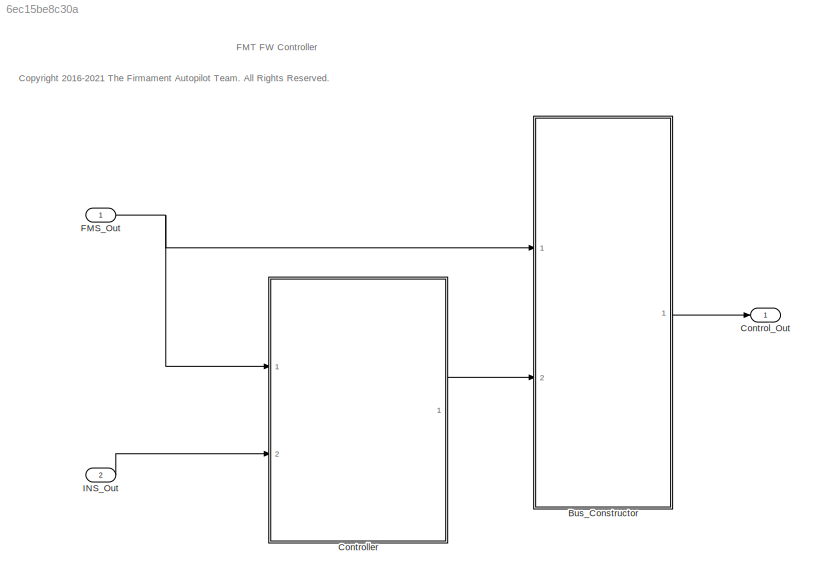
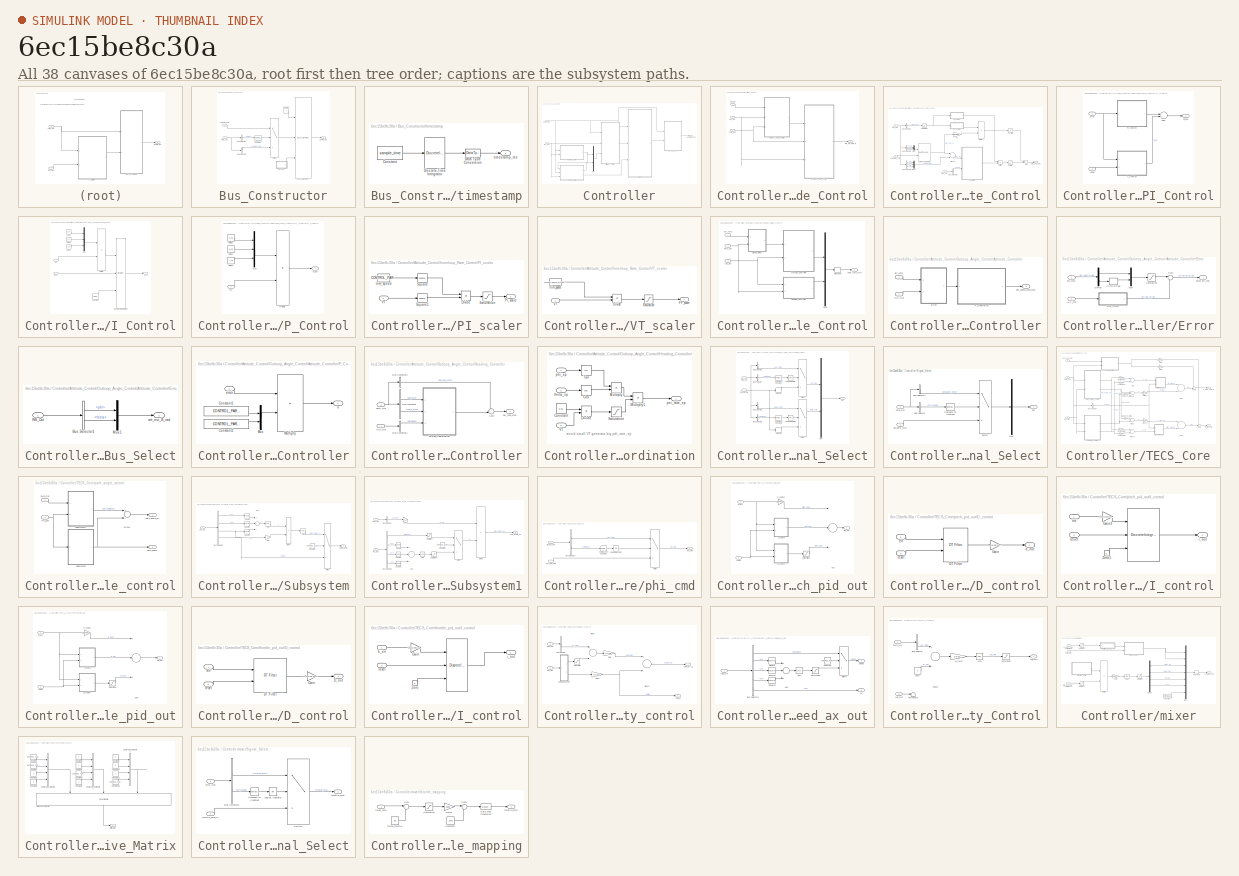
[diagram: thumbnail index - all 38 canvases of the model, root first then tree order]
MODEL slx_6ec15be8c30a
KIND model
CONFIG AbsTol = auto
CONFIG EnableMultiTasking = off
CONFIG FixedStep = control_dt
CONFIG MaxStep = auto
CONFIG MinStep = auto
CONFIG RelTol = 1e-3
CONFIG SampleTimeConstraint = Unconstrained
CONFIG Solver = FixedStepDiscrete
CONFIG SolverName = FixedStepDiscrete
CONFIG StartTime = 0.0
CONFIG StopTime = 10.0
BLOCK [SubSystem] Bus_Constructor
  Ports = [2, 1]
  RequestExecContextInheritance = off
BLOCK [BusAssignment] Bus_Constructor/Bus Assignment
  AssignedSignals = actuator_cmd,timestamp
  Ports = [3, 1]
BLOCK [BusSelector] Bus_Constructor/Bus Selector
  OutputAsBus = off
  OutputSignals = status
  Ports = [1, 1]
BLOCK [BusSelector] Bus_Constructor/Bus Selector1
  OutputAsBus = off
  OutputSignals = actuator_cmd
  Ports = [1, 1]
BLOCK [Reference] Bus_Constructor/Compare To Constant  REF=simulink/Logic and Bit
Operations/Compare
To Constant
  Ports = [1, 1]
  SourceBlock = simulink/Logic and Bit\nOperations/Compare\nTo Constant
  SourceProductBaseCode = SL
  SourceProductName = Simulink
  SourceType = Compare To Constant
BLOCK [Constant] Bus_Constructor/Constant
  OutDataTypeStr = Bus: Control_Out_Bus
  Value = 0
BLOCK [Outport] Bus_Constructor/Control_Out
  IconDisplay = Port number
BLOCK [Inport] Bus_Constructor/FMS_Out
  IconDisplay = Port number
BLOCK [Switch] Bus_Constructor/Switch
  Criteria = u2 > Threshold
  InputSameDT = off
  SaturateOnIntegerOverflow = off
BLOCK [Inport] Bus_Constructor/actuator_cmd
  IconDisplay = Port number
  Port = 2
BLOCK [SubSystem] Bus_Constructor/timestamp
  Ports = [0, 1]
  RequestExecContextInheritance = off
BLOCK [Constant] Bus_Constructor/timestamp/Constant
  Value = sample_time
BLOCK [DataTypeConversion] Bus_Constructor/timestamp/Data Type Conversion
  OutDataTypeStr = uint32
  RndMeth = Floor
  SaturateOnIntegerOverflow = off
BLOCK [DiscreteIntegrator] Bus_Constructor/timestamp/Discrete-Time Integrator
  ICPrevOutput = DiscIntNeverNeededParam
  ICPrevScaledInput = DiscIntNeverNeededParam
  InitialConditionSetting = Auto
  IntegratorMethod = Accumulation: Forward Euler
  Ports = [1, 1]
  SampleTime = -1
BLOCK [Outport] Bus_Constructor/timestamp/timestamp_ms
  IconDisplay = Port number
BLOCK [Outport] Control_Out
  IconDisplay = Port number
  OutDataTypeStr = Bus: Control_Out_Bus
BLOCK [SubSystem] Controller
  Ports = [2, 1]
  RequestExecContextInheritance = off
BLOCK [SubSystem] Controller/Attitude_Control
  Ports = [3, 1]
  RequestExecContextInheritance = off
BLOCK [Inport] Controller/Attitude_Control/FMS_Out
  IconDisplay = Port number
BLOCK [Inport] Controller/Attitude_Control/INS_Out
  IconDisplay = Port number
  Port = 2
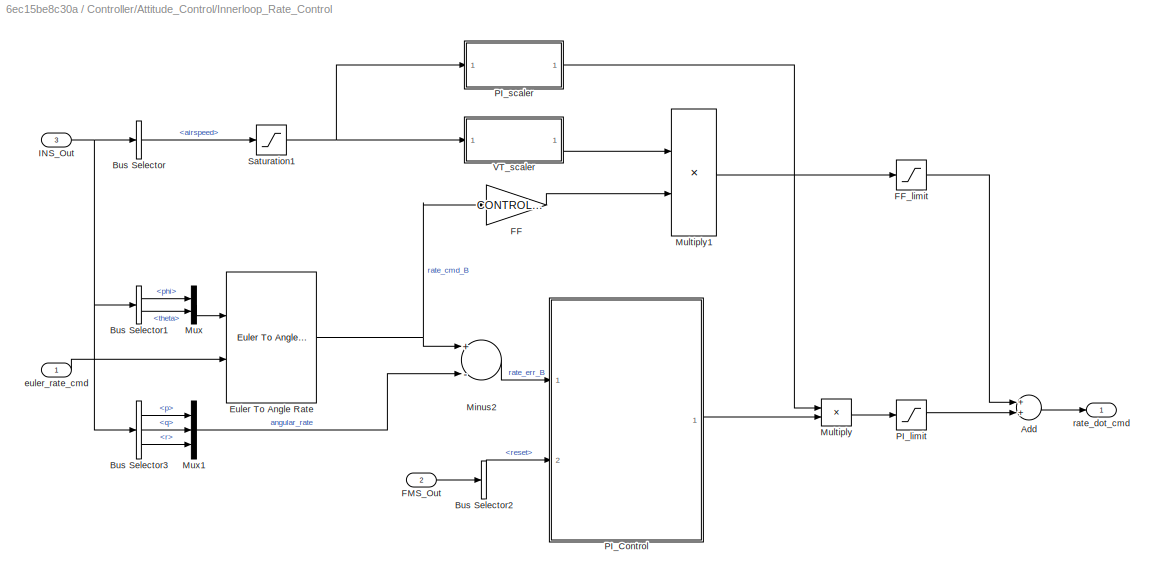
BLOCK [SubSystem] Controller/Attitude_Control/Innerloop_Rate_Control
  Ports = [3, 1]
  RequestExecContextInheritance = off
BLOCK [Sum] Controller/Attitude_Control/Innerloop_Rate_Control/Add
  InputSameDT = off
  OutDataTypeStr = Inherit: Inherit via internal rule
  Ports = [2, 1]
  SaturateOnIntegerOverflow = off
BLOCK [BusSelector] Controller/Attitude_Control/Innerloop_Rate_Control/Bus Selector
  OutputAsBus = off
  OutputSignals = airspeed
  Ports = [1, 1]
BLOCK [BusSelector] Controller/Attitude_Control/Innerloop_Rate_Control/Bus Selector1
  OutputAsBus = off
  OutputSignals = phi,theta
  Ports = [1, 2]
BLOCK [BusSelector] Controller/Attitude_Control/Innerloop_Rate_Control/Bus Selector2
  OutputAsBus = off
  OutputSignals = reset
  Ports = [1, 1]
BLOCK [BusSelector] Controller/Attitude_Control/Innerloop_Rate_Control/Bus Selector3
  OutputAsBus = off
  OutputSignals = p,q,r
  Ports = [1, 3]
BLOCK [Reference] Controller/Attitude_Control/Innerloop_Rate_Control/Euler To Angle Rate  REF=FMT_Model_Lib/Math/Euler To Angle Rate
  Ports = [2, 1]
  SourceBlock = FMT_Model_Lib/Math/Euler To Angle Rate
  SourceProductName = FMT Toolbox
  SourceType = Euler Rate to Angle Rate
BLOCK [Gain] Controller/Attitude_Control/Innerloop_Rate_Control/FF
  Gain = CONTROL_PARAM.FW_FF
  Multiplication = Matrix(K*u)
  OutDataTypeStr = Inherit: Inherit via internal rule
  ParamDataTypeStr = Inherit: Inherit via internal rule
  SaturateOnIntegerOverflow = off
BLOCK [Saturate] Controller/Attitude_Control/Innerloop_Rate_Control/FF_limit
  InputPortMap = u0
  LowerLimit = -CONTROL_PARAM.FW_FF_LIMIT
  OutDataTypeStr = single
  Ports = [1, 1]
  UpperLimit = CONTROL_PARAM.FW_FF_LIMIT
BLOCK [Inport] Controller/Attitude_Control/Innerloop_Rate_Control/FMS_Out
  IconDisplay = Port number
  Port = 2
BLOCK [Inport] Controller/Attitude_Control/Innerloop_Rate_Control/INS_Out
  IconDisplay = Port number
  Port = 3
BLOCK [Sum] Controller/Attitude_Control/Innerloop_Rate_Control/Minus2
  InputSameDT = off
  Inputs = +-
  OutDataTypeStr = Inherit: Inherit via internal rule
  Ports = [2, 1]
  SaturateOnIntegerOverflow = off
BLOCK [Product] Controller/Attitude_Control/Innerloop_Rate_Control/Multiply
  InputSameDT = off
  OutDataTypeStr = Inherit: Inherit via internal rule
  Ports = [2, 1]
  RndMeth = Floor
  SaturateOnIntegerOverflow = off
BLOCK [Product] Controller/Attitude_Control/Innerloop_Rate_Control/Multiply1
  InputSameDT = off
  OutDataTypeStr = Inherit: Inherit via internal rule
  Ports = [2, 1]
  RndMeth = Floor
  SaturateOnIntegerOverflow = off
BLOCK [Mux] Controller/Attitude_Control/Innerloop_Rate_Control/Mux
  DisplayOption = bar
  Inputs = 2
  Ports = [2, 1]
BLOCK [Mux] Controller/Attitude_Control/Innerloop_Rate_Control/Mux1
  DisplayOption = bar
  Inputs = 3
  Ports = [3, 1]
BLOCK [SubSystem] Controller/Attitude_Control/Innerloop_Rate_Control/PI_Control
  Ports = [2, 1]
  RequestExecContextInheritance = off
BLOCK [Sum] Controller/Attitude_Control/Innerloop_Rate_Control/PI_Control/Add1
  InputSameDT = off
  OutDataTypeStr = Inherit: Inherit via internal rule
  Ports = [2, 1]
  SaturateOnIntegerOverflow = off
BLOCK [SubSystem] Controller/Attitude_Control/Innerloop_Rate_Control/PI_Control/I_Control
  Ports = [2, 1]
  RequestExecContextInheritance = off
BLOCK [Constant] Controller/Attitude_Control/Innerloop_Rate_Control/PI_Control/I_Control/Constant
  OutDataTypeStr = single
  Value = [0;0;0]
BLOCK [DiscreteIntegrator] Controller/Attitude_Control/Innerloop_Rate_Control/PI_Control/I_Control/Discrete-Time Integrator
  ExternalReset = level
  ICPrevOutput = DiscIntNeverNeededParam
  ICPrevScaledInput = DiscIntNeverNeededParam
  InitialConditionSetting = Auto
  InitialConditionSource = external
  LimitOutput = on
  LowerSaturationLimit = min_i
  Ports = [3, 1]
  SampleTime = -1
  UpperSaturationLimit = max_i
BLOCK [Product] Controller/Attitude_Control/Innerloop_Rate_Control/PI_Control/I_Control/Multiply
  InputSameDT = off
  Ports = [2, 1]
  RndMeth = Floor
  SaturateOnIntegerOverflow = off
BLOCK [Mux] Controller/Attitude_Control/Innerloop_Rate_Control/PI_Control/I_Control/Mux
  DisplayOption = bar
  Inputs = 3
  Ports = [3, 1]
BLOCK [Inport] Controller/Attitude_Control/Innerloop_Rate_Control/PI_Control/I_Control/err
  IconDisplay = Port number
BLOCK [Constant] Controller/Attitude_Control/Innerloop_Rate_Control/PI_Control/I_Control/gain1
  OutDataTypeStr = single
  Value = p_ki
BLOCK [Constant] Controller/Attitude_Control/Innerloop_Rate_Control/PI_Control/I_Control/gain2
  OutDataTypeStr = single
  Value = q_ki
BLOCK [Constant] Controller/Attitude_Control/Innerloop_Rate_Control/PI_Control/I_Control/gain3
  OutDataTypeStr = single
  Value = r_ki
BLOCK [Outport] Controller/Attitude_Control/Innerloop_Rate_Control/PI_Control/I_Control/i_out
  IconDisplay = Port number
BLOCK [Inport] Controller/Attitude_Control/Innerloop_Rate_Control/PI_Control/I_Control/reset
  IconDisplay = Port number
  Port = 2
BLOCK [SubSystem] Controller/Attitude_Control/Innerloop_Rate_Control/PI_Control/P_Control
  Ports = [1, 1]
  RequestExecContextInheritance = off
BLOCK [Product] Controller/Attitude_Control/Innerloop_Rate_Control/PI_Control/P_Control/Multiply
  InputSameDT = off
  Ports = [2, 1]
  RndMeth = Floor
  SaturateOnIntegerOverflow = off
BLOCK [Mux] Controller/Attitude_Control/Innerloop_Rate_Control/PI_Control/P_Control/Mux
  DisplayOption = bar
  Inputs = 3
  Ports = [3, 1]
BLOCK [Inport] Controller/Attitude_Control/Innerloop_Rate_Control/PI_Control/P_Control/err
  IconDisplay = Port number
BLOCK [Constant] Controller/Attitude_Control/Innerloop_Rate_Control/PI_Control/P_Control/gain1
  OutDataTypeStr = single
  Value = p_kp
BLOCK [Constant] Controller/Attitude_Control/Innerloop_Rate_Control/PI_Control/P_Control/gain2
  OutDataTypeStr = single
  Value = q_kp
BLOCK [Constant] Controller/Attitude_Control/Innerloop_Rate_Control/PI_Control/P_Control/gain3
  OutDataTypeStr = single
  Value = r_kp
BLOCK [Outport] Controller/Attitude_Control/Innerloop_Rate_Control/PI_Control/P_Control/p_out
  IconDisplay = Port number
BLOCK [Inport] Controller/Attitude_Control/Innerloop_Rate_Control/PI_Control/error
  IconDisplay = Port number
BLOCK [Outport] Controller/Attitude_Control/Innerloop_Rate_Control/PI_Control/pi_out
  IconDisplay = Port number
BLOCK [Inport] Controller/Attitude_Control/Innerloop_Rate_Control/PI_Control/reset
  IconDisplay = Port number
  Port = 2
BLOCK [Saturate] Controller/Attitude_Control/Innerloop_Rate_Control/PI_limit
  InputPortMap = u0
  LowerLimit = -CONTROL_PARAM.FW_PI_LIMIT
  Ports = [1, 1]
  UpperLimit = CONTROL_PARAM.FW_PI_LIMIT
BLOCK [SubSystem] Controller/Attitude_Control/Innerloop_Rate_Control/PI_scaler
  Ports = [1, 1]
  RequestExecContextInheritance = off
BLOCK [Product] Controller/Attitude_Control/Innerloop_Rate_Control/PI_scaler/Divide
  InputSameDT = off
  Inputs = */
  OutDataTypeStr = Inherit: Inherit via internal rule
  Ports = [2, 1]
  RndMeth = Floor
  SaturateOnIntegerOverflow = off
BLOCK [Outport] Controller/Attitude_Control/Innerloop_Rate_Control/PI_scaler/PI_scale
  IconDisplay = Port number
BLOCK [Saturate] Controller/Attitude_Control/Innerloop_Rate_Control/PI_scaler/Saturation
  InputPortMap = u0
  LowerLimit = 0
  Ports = [1, 1]
  UpperLimit = 1
BLOCK [Math] Controller/Attitude_Control/Innerloop_Rate_Control/PI_scaler/Square
  Operator = square
  Ports = [1, 1]
BLOCK [Math] Controller/Attitude_Control/Innerloop_Rate_Control/PI_scaler/Square1
  Operator = square
  Ports = [1, 1]
BLOCK [Inport] Controller/Attitude_Control/Innerloop_Rate_Control/PI_scaler/VT
  IconDisplay = Port number
BLOCK [Constant] Controller/Attitude_Control/Innerloop_Rate_Control/PI_scaler/trim_speed
  Value = CONTROL_PARAM.FW_AIRSPEED_TRIM
BLOCK [Saturate] Controller/Attitude_Control/Innerloop_Rate_Control/Saturation1
  InputPortMap = u0
  LowerLimit = 0.1
  Ports = [1, 1]
  UpperLimit = 999
BLOCK [SubSystem] Controller/Attitude_Control/Innerloop_Rate_Control/VT_scaler
  Ports = [1, 1]
  RequestExecContextInheritance = off
BLOCK [Product] Controller/Attitude_Control/Innerloop_Rate_Control/VT_scaler/Divide
  InputSameDT = off
  Inputs = */
  OutDataTypeStr = Inherit: Inherit via internal rule
  Ports = [2, 1]
  RndMeth = Floor
  SaturateOnIntegerOverflow = off
BLOCK [Outport] Controller/Attitude_Control/Innerloop_Rate_Control/VT_scaler/FF_scale
  IconDisplay = Port number
BLOCK [Saturate] Controller/Attitude_Control/Innerloop_Rate_Control/VT_scaler/Saturation
  InputPortMap = u0
  LowerLimit = 0
  Ports = [1, 1]
  UpperLimit = 1
BLOCK [Inport] Controller/Attitude_Control/Innerloop_Rate_Control/VT_scaler/VT
  IconDisplay = Port number
BLOCK [Constant] Controller/Attitude_Control/Innerloop_Rate_Control/VT_scaler/trim_speed
  Value = CONTROL_PARAM.FW_AIRSPEED_TRIM
BLOCK [Inport] Controller/Attitude_Control/Innerloop_Rate_Control/euler_rate_cmd
  IconDisplay = Port number
BLOCK [Outport] Controller/Attitude_Control/Innerloop_Rate_Control/rate_dot_cmd
  IconDisplay = Port number
BLOCK [SubSystem] Controller/Attitude_Control/Outloop_Angle_Control
  Ports = [3, 1]
  RequestExecContextInheritance = off
BLOCK [SubSystem] Controller/Attitude_Control/Outloop_Angle_Control/Attitude_Controller
  Ports = [2, 1]
  RequestExecContextInheritance = off
BLOCK [SubSystem] Controller/Attitude_Control/Outloop_Angle_Control/Attitude_Controller/Error
  Ports = [2, 1]
  RequestExecContextInheritance = off
BLOCK [SubSystem] Controller/Attitude_Control/Outloop_Angle_Control/Attitude_Controller/Error/Bus_Select
  Ports = [1, 1]
  RequestExecContextInheritance = off
BLOCK [BusSelector] Controller/Attitude_Control/Outloop_Angle_Control/Attitude_Controller/Error/Bus_Select/Bus Selector1
  OutputAsBus = off
  OutputSignals = phi,theta
  Ports = [1, 2]
BLOCK [Inport] Controller/Attitude_Control/Outloop_Angle_Control/Attitude_Controller/Error/Bus_Select/INS_Out
  IconDisplay = Port number
BLOCK [Mux] Controller/Attitude_Control/Outloop_Angle_Control/Attitude_Controller/Error/Bus_Select/Mux1
  DisplayOption = bar
  Inputs = 2
  Ports = [2, 1]
BLOCK [Outport] Controller/Attitude_Control/Outloop_Angle_Control/Attitude_Controller/Error/Bus_Select/att_est_B_rad
  IconDisplay = Port number
BLOCK [Demux] Controller/Attitude_Control/Outloop_Angle_Control/Attitude_Controller/Error/Demux
  DisplayOption = bar
  Outputs = 2
  Ports = [1, 2]
BLOCK [Inport] Controller/Attitude_Control/Outloop_Angle_Control/Attitude_Controller/Error/INS_Out
  IconDisplay = Port number
  Port = 2
BLOCK [Mux] Controller/Attitude_Control/Outloop_Angle_Control/Attitude_Controller/Error/Mux
  DisplayOption = bar
  Inputs = 2
  Ports = [2, 1]
BLOCK [Bias] Controller/Attitude_Control/Outloop_Angle_Control/Attitude_Controller/Error/Pitch Offset
  Bias = CONTROL_PARAM.FW_PITCH_OFFSET
  SaturateOnIntegerOverflow = off
BLOCK [Saturate] Controller/Attitude_Control/Outloop_Angle_Control/Attitude_Controller/Error/Saturation
  InputPortMap = u0
  LowerLimit = -CONTROL_PARAM.ROLL_PITCH_CMD_LIM
  Ports = [1, 1]
  UpperLimit = CONTROL_PARAM.ROLL_PITCH_CMD_LIM
BLOCK [Sum] Controller/Attitude_Control/Outloop_Angle_Control/Attitude_Controller/Error/Sum
  IconShape = round
  InputSameDT = off
  Inputs = |+-
  OutDataTypeStr = Inherit: Inherit via internal rule
  Ports = [2, 1]
  SaturateOnIntegerOverflow = off
BLOCK [Inport] Controller/Attitude_Control/Outloop_Angle_Control/Attitude_Controller/Error/att_cmd
  IconDisplay = Port number
BLOCK [Outport] Controller/Attitude_Control/Outloop_Angle_Control/Attitude_Controller/Error/euler_err_rad
  IconDisplay = Port number
BLOCK [Inport] Controller/Attitude_Control/Outloop_Angle_Control/Attitude_Controller/INS_Out
  IconDisplay = Port number
  Port = 2
BLOCK [SubSystem] Controller/Attitude_Control/Outloop_Angle_Control/Attitude_Controller/P_Controller
  Ports = [1, 1]
  RequestExecContextInheritance = off
BLOCK [Constant] Controller/Attitude_Control/Outloop_Angle_Control/Attitude_Controller/P_Controller/Constant1
  Value = CONTROL_PARAM.ROLL_P
BLOCK [Constant] Controller/Attitude_Control/Outloop_Angle_Control/Attitude_Controller/P_Controller/Constant2
  Value = CONTROL_PARAM.PITCH_P
BLOCK [Product] Controller/Attitude_Control/Outloop_Angle_Control/Attitude_Controller/P_Controller/Multiply
  InputSameDT = off
  OutDataTypeStr = Inherit: Inherit via internal rule
  Ports = [2, 1]
  RndMeth = Floor
  SaturateOnIntegerOverflow = off
BLOCK [Mux] Controller/Attitude_Control/Outloop_Angle_Control/Attitude_Controller/P_Controller/Mux
  DisplayOption = bar
  Inputs = 2
  Ports = [2, 1]
BLOCK [Inport] Controller/Attitude_Control/Outloop_Angle_Control/Attitude_Controller/P_Controller/error
  IconDisplay = Port number
BLOCK [Outport] Controller/Attitude_Control/Outloop_Angle_Control/Attitude_Controller/P_Controller/u
  IconDisplay = Port number
BLOCK [Inport] Controller/Attitude_Control/Outloop_Angle_Control/Attitude_Controller/att_cmd
  IconDisplay = Port number
BLOCK [Outport] Controller/Attitude_Control/Outloop_Angle_Control/Attitude_Controller/phi_theta_rate_cmd
  IconDisplay = Port number
BLOCK [Inport] Controller/Attitude_Control/Outloop_Angle_Control/FMS_Out
  IconDisplay = Port number
  Port = 3
BLOCK [SubSystem] Controller/Attitude_Control/Outloop_Angle_Control/Heading_Controller
  Ports = [2, 1]
  RequestExecContextInheritance = off
BLOCK [BusSelector] Controller/Attitude_Control/Outloop_Angle_Control/Heading_Controller/Bus Selector
  OutputAsBus = off
  OutputSignals = phi_cmd,theta_cmd
  Ports = [1, 2]
BLOCK [BusSelector] Controller/Attitude_Control/Outloop_Angle_Control/Heading_Controller/Bus Selector1
  OutputAsBus = off
  OutputSignals = airspeed
  Ports = [1, 1]
BLOCK [BusSelector] Controller/Attitude_Control/Outloop_Angle_Control/Heading_Controller/Bus Selector2
  OutputAsBus = off
  OutputSignals = psi_rate_cmd
  Ports = [1, 1]
BLOCK [Inport] Controller/Attitude_Control/Outloop_Angle_Control/Heading_Controller/FMS_Out
  IconDisplay = Port number
  Port = 2
BLOCK [Inport] Controller/Attitude_Control/Outloop_Angle_Control/Heading_Controller/INS_Out
  IconDisplay = Port number
BLOCK [Sum] Controller/Attitude_Control/Outloop_Angle_Control/Heading_Controller/Sum
  IconShape = round
  InputSameDT = off
  Inputs = ++|
  OutDataTypeStr = Inherit: Inherit via internal rule
  Ports = [2, 1]
  SaturateOnIntegerOverflow = off
BLOCK [SubSystem] Controller/Attitude_Control/Outloop_Angle_Control/Heading_Controller/Turning_Coordination
  Ports = [3, 1]
  RequestExecContextInheritance = off
BLOCK [Constant] Controller/Attitude_Control/Outloop_Angle_Control/Heading_Controller/Turning_Coordination/Constant
  OutDataTypeStr = single
  Value = 9.81
BLOCK [Trigonometry] Controller/Attitude_Control/Outloop_Angle_Control/Heading_Controller/Turning_Coordination/Cos
  Operator = cos
  Ports = [1, 1]
BLOCK [Product] Controller/Attitude_Control/Outloop_Angle_Control/Heading_Controller/Turning_Coordination/Divide
  InputSameDT = off
  Inputs = */
  OutDataTypeStr = Inherit: Inherit via internal rule
  Ports = [2, 1]
  RndMeth = Floor
  SaturateOnIntegerOverflow = off
BLOCK [Product] Controller/Attitude_Control/Outloop_Angle_Control/Heading_Controller/Turning_Coordination/Multiply
  InputSameDT = off
  OutDataTypeStr = Inherit: Inherit via internal rule
  Ports = [2, 1]
  RndMeth = Floor
  SaturateOnIntegerOverflow = off
BLOCK [Product] Controller/Attitude_Control/Outloop_Angle_Control/Heading_Controller/Turning_Coordination/Multiply1
  InputSameDT = off
  OutDataTypeStr = Inherit: Inherit via internal rule
  Ports = [2, 1]
  RndMeth = Floor
  SaturateOnIntegerOverflow = off
BLOCK [Saturate] Controller/Attitude_Control/Outloop_Angle_Control/Heading_Controller/Turning_Coordination/Saturation
  InputPortMap = u0
  LowerLimit = 0
  Ports = [1, 1]
  UpperLimit = 1
BLOCK [Trigonometry] Controller/Attitude_Control/Outloop_Angle_Control/Heading_Controller/Turning_Coordination/Tan
  Operator = tan
  Ports = [1, 1]
BLOCK [Inport] Controller/Attitude_Control/Outloop_Angle_Control/Heading_Controller/Turning_Coordination/VT
  IconDisplay = Port number
  Port = 3
BLOCK [Inport] Controller/Attitude_Control/Outloop_Angle_Control/Heading_Controller/Turning_Coordination/phi_sp
  IconDisplay = Port number
BLOCK [Outport] Controller/Attitude_Control/Outloop_Angle_Control/Heading_Controller/Turning_Coordination/psi_rate_sp
  IconDisplay = Port number
BLOCK [Inport] Controller/Attitude_Control/Outloop_Angle_Control/Heading_Controller/Turning_Coordination/theta_sp
  IconDisplay = Port number
  Port = 2
BLOCK [Outport] Controller/Attitude_Control/Outloop_Angle_Control/Heading_Controller/psi_rate_cmd
  IconDisplay = Port number
BLOCK [Inport] Controller/Attitude_Control/Outloop_Angle_Control/INS_Out
  IconDisplay = Port number
  Port = 2
BLOCK [Mux] Controller/Attitude_Control/Outloop_Angle_Control/Mux
  DisplayOption = bar
  Inputs = 2
  Ports = [2, 1]
BLOCK [Reshape] Controller/Attitude_Control/Outloop_Angle_Control/Reshape
  OutputDimensionality = Column vector (2-D)
  Ports = [1, 1]
BLOCK [SubSystem] Controller/Attitude_Control/Outloop_Angle_Control/Signal_Select
  Ports = [2, 1]
  RequestExecContextInheritance = off
BLOCK [BusSelector] Controller/Attitude_Control/Outloop_Angle_Control/Signal_Select/Bus Selector
  OutputAsBus = off
  OutputSignals = ctrl_mode
  Ports = [1, 1]
BLOCK [BusSelector] Controller/Attitude_Control/Outloop_Angle_Control/Signal_Select/Bus Selector1
  OutputAsBus = off
  OutputSignals = phi_cmd
  Ports = [1, 1]
BLOCK [BusSelector] Controller/Attitude_Control/Outloop_Angle_Control/Signal_Select/Bus Selector2
  OutputAsBus = off
  OutputSignals = ctrl_mode
  Ports = [1, 1]
BLOCK [BusSelector] Controller/Attitude_Control/Outloop_Angle_Control/Signal_Select/Bus Selector3
  OutputAsBus = off
  OutputSignals = theta_cmd
  Ports = [1, 1]
BLOCK [Reference] Controller/Attitude_Control/Outloop_Angle_Control/Signal_Select/Compare To Constant  REF=simulink/Logic and Bit
Operations/Compare
To Constant
  Ports = [1, 1]
  SourceBlock = simulink/Logic and Bit\nOperations/Compare\nTo Constant
  SourceProductBaseCode = SL
  SourceProductName = Simulink
  SourceType = Compare To Constant
BLOCK [Reference] Controller/Attitude_Control/Outloop_Angle_Control/Signal_Select/Compare To Constant1  REF=simulink/Logic and Bit
Operations/Compare
To Constant
  Ports = [1, 1]
  SourceBlock = simulink/Logic and Bit\nOperations/Compare\nTo Constant
  SourceProductBaseCode = SL
  SourceProductName = Simulink
  SourceType = Compare To Constant
BLOCK [Inport] Controller/Attitude_Control/Outloop_Angle_Control/Signal_Select/FMS_Out
  IconDisplay = Port number
  Port = 2
BLOCK [Logic] Controller/Attitude_Control/Outloop_Angle_Control/Signal_Select/Logical Operator
  AllPortsSameDT = off
  Inputs = 1
  Operator = OR
  OutDataTypeStr = boolean
  Ports = [1, 1]
BLOCK [Logic] Controller/Attitude_Control/Outloop_Angle_Control/Signal_Select/Logical Operator1
  AllPortsSameDT = off
  Inputs = 1
  Operator = OR
  OutDataTypeStr = boolean
  Ports = [1, 1]
BLOCK [Mux] Controller/Attitude_Control/Outloop_Angle_Control/Signal_Select/Mux
  DisplayOption = bar
  Inputs = 2
  Ports = [2, 1]
BLOCK [Selector] Controller/Attitude_Control/Outloop_Angle_Control/Signal_Select/Selector
  IndexOptions = Index vector (dialog)
  Indices = 1
  InputPortWidth = 2
  OutputSizes = 1
  Ports = [1, 1]
BLOCK [Selector] Controller/Attitude_Control/Outloop_Angle_Control/Signal_Select/Selector1
  IndexOptions = Index vector (dialog)
  Indices = 2
  InputPortWidth = 2
  OutputSizes = 1
  Ports = [1, 1]
BLOCK [Switch] Controller/Attitude_Control/Outloop_Angle_Control/Signal_Select/Switch
  Criteria = u2 > Threshold
  InputSameDT = off
  SaturateOnIntegerOverflow = off
BLOCK [Switch] Controller/Attitude_Control/Outloop_Angle_Control/Signal_Select/Switch1
  Criteria = u2 > Threshold
  InputSameDT = off
  SaturateOnIntegerOverflow = off
BLOCK [Inport] Controller/Attitude_Control/Outloop_Angle_Control/Signal_Select/att_cmd_rad
  IconDisplay = Port number
BLOCK [Outport] Controller/Attitude_Control/Outloop_Angle_Control/Signal_Select/out
  IconDisplay = Port number
BLOCK [Inport] Controller/Attitude_Control/Outloop_Angle_Control/att_cmd
  IconDisplay = Port number
BLOCK [Outport] Controller/Attitude_Control/Outloop_Angle_Control/euler_rate_cmd
  IconDisplay = Port number
BLOCK [Inport] Controller/Attitude_Control/att_cmd
  IconDisplay = Port number
  Port = 3
BLOCK [Outport] Controller/Attitude_Control/rate_dot_cmd_B
  IconDisplay = Port number
BLOCK [Inport] Controller/FMS_Out
  IconDisplay = Port number
BLOCK [Inport] Controller/INS_Out
  IconDisplay = Port number
  Port = 2
BLOCK [Mux] Controller/Mux
  DisplayOption = bar
  Inputs = 2
  Ports = [2, 1]
BLOCK [SubSystem] Controller/Signal_Select
  Ports = [2, 1]
  RequestExecContextInheritance = off
BLOCK [BusSelector] Controller/Signal_Select/Bus Selector
  OutputAsBus = off
  OutputSignals = ctrl_mode
  Ports = [1, 1]
BLOCK [BusSelector] Controller/Signal_Select/Bus Selector1
  OutputAsBus = off
  OutputSignals = actuator_cmd
  Ports = [1, 1]
BLOCK [Reference] Controller/Signal_Select/Compare To Constant  REF=simulink/Logic and Bit
Operations/Compare
To Constant
  Ports = [1, 1]
  SourceBlock = simulink/Logic and Bit\nOperations/Compare\nTo Constant
  SourceProductBaseCode = SL
  SourceProductName = Simulink
  SourceType = Compare To Constant
BLOCK [Inport] Controller/Signal_Select/FMS_Out
  IconDisplay = Port number
BLOCK [Mux] Controller/Signal_Select/Mux
  DisplayOption = bar
  Inputs = 1
  Ports = [1, 1]
BLOCK [Switch] Controller/Signal_Select/Switch
  Criteria = u2 > Threshold
  InputSameDT = off
  SaturateOnIntegerOverflow = off
BLOCK [Inport] Controller/Signal_Select/actuator_cmd
  IconDisplay = Port number
  Port = 2
BLOCK [Outport] Controller/Signal_Select/out
  IconDisplay = Port number
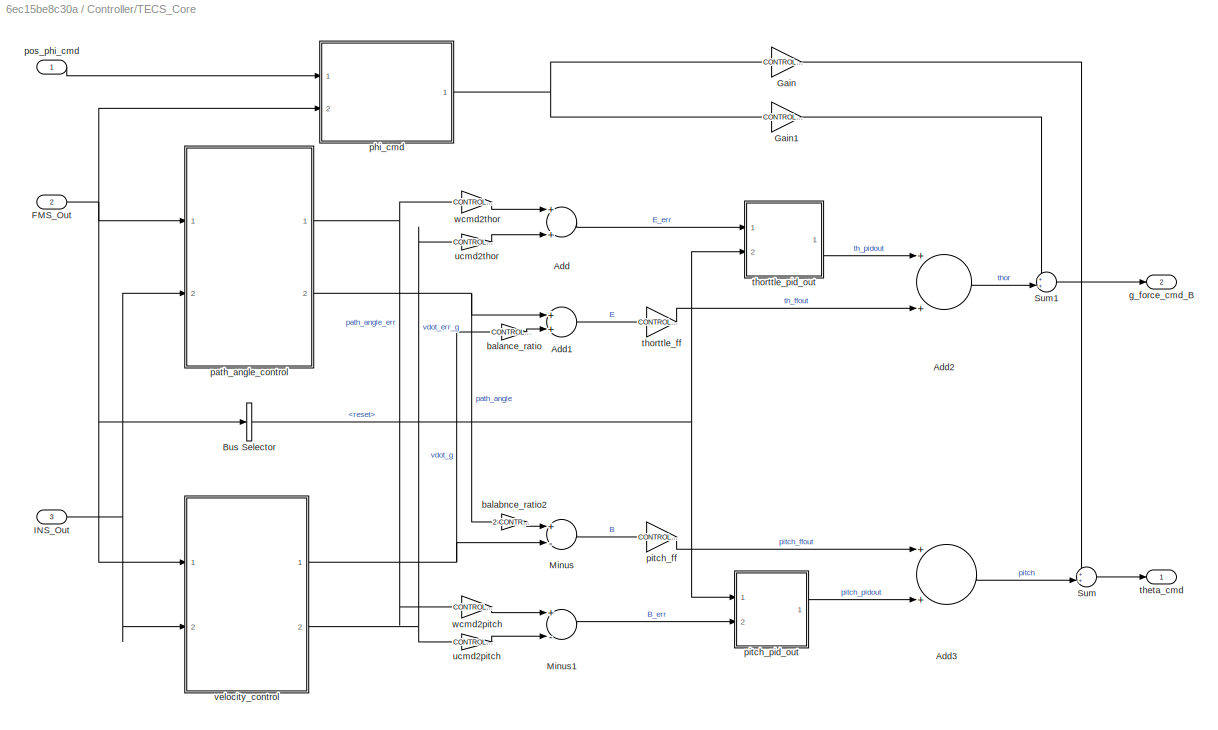
BLOCK [SubSystem] Controller/TECS_Core
  Ports = [3, 2]
  RequestExecContextInheritance = off
BLOCK [Sum] Controller/TECS_Core/Add
  InputSameDT = off
  OutDataTypeStr = Inherit: Inherit via internal rule
  Ports = [2, 1]
  SaturateOnIntegerOverflow = off
BLOCK [Sum] Controller/TECS_Core/Add1
  InputSameDT = off
  OutDataTypeStr = Inherit: Inherit via internal rule
  Ports = [2, 1]
  SaturateOnIntegerOverflow = off
BLOCK [Sum] Controller/TECS_Core/Add2
  InputSameDT = off
  OutDataTypeStr = Inherit: Inherit via internal rule
  Ports = [2, 1]
  SaturateOnIntegerOverflow = off
BLOCK [Sum] Controller/TECS_Core/Add3
  InputSameDT = off
  OutDataTypeStr = Inherit: Inherit via internal rule
  Ports = [2, 1]
  SaturateOnIntegerOverflow = off
BLOCK [BusSelector] Controller/TECS_Core/Bus Selector
  OutputAsBus = off
  OutputSignals = reset
  Ports = [1, 1]
BLOCK [Inport] Controller/TECS_Core/FMS_Out
  IconDisplay = Port number
  Port = 2
BLOCK [Gain] Controller/TECS_Core/Gain
  Gain = CONTROL_PARAM.FW_TECS_R2P
  OutDataTypeStr = Inherit: Inherit via internal rule
  ParamDataTypeStr = Inherit: Inherit via internal rule
  SaturateOnIntegerOverflow = off
BLOCK [Gain] Controller/TECS_Core/Gain1
  Gain = CONTROL_PARAM.FW_TECS_R2T
  OutDataTypeStr = Inherit: Inherit via internal rule
  ParamDataTypeStr = Inherit: Inherit via internal rule
  SaturateOnIntegerOverflow = off
BLOCK [Inport] Controller/TECS_Core/INS_Out
  IconDisplay = Port number
  Port = 3
BLOCK [Sum] Controller/TECS_Core/Minus
  InputSameDT = off
  Inputs = +-
  OutDataTypeStr = Inherit: Inherit via internal rule
  Ports = [2, 1]
  SaturateOnIntegerOverflow = off
BLOCK [Sum] Controller/TECS_Core/Minus1
  InputSameDT = off
  Inputs = +-
  OutDataTypeStr = Inherit: Inherit via internal rule
  Ports = [2, 1]
  SaturateOnIntegerOverflow = off
BLOCK [Sum] Controller/TECS_Core/Sum
  IconShape = round
  InputSameDT = off
  Inputs = ++|
  OutDataTypeStr = Inherit: Inherit via internal rule
  Ports = [2, 1]
  SaturateOnIntegerOverflow = off
BLOCK [Sum] Controller/TECS_Core/Sum1
  IconShape = round
  InputSameDT = off
  Inputs = ++|
  OutDataTypeStr = Inherit: Inherit via internal rule
  Ports = [2, 1]
  SaturateOnIntegerOverflow = off
BLOCK [Gain] Controller/TECS_Core/balabnce_ratio2
  Gain = 2-CONTROL_PARAM.FW_TECS_RATIO
  OutDataTypeStr = Inherit: Inherit via internal rule
  ParamDataTypeStr = Inherit: Inherit via internal rule
  SaturateOnIntegerOverflow = off
BLOCK [Gain] Controller/TECS_Core/balance_ratio
  Gain = CONTROL_PARAM.FW_TECS_RATIO
  OutDataTypeStr = Inherit: Inherit via internal rule
  ParamDataTypeStr = Inherit: Inherit via internal rule
  SaturateOnIntegerOverflow = off
BLOCK [Outport] Controller/TECS_Core/g_force_cmd_B
  IconDisplay = Port number
  Port = 2
BLOCK [SubSystem] Controller/TECS_Core/path_angle_control
  Ports = [2, 2]
  RequestExecContextInheritance = off
BLOCK [Inport] Controller/TECS_Core/path_angle_control/FMS_Out
  IconDisplay = Port number
BLOCK [Inport] Controller/TECS_Core/path_angle_control/INS_out
  IconDisplay = Port number
  Port = 2
BLOCK [Sum] Controller/TECS_Core/path_angle_control/Minus
  InputSameDT = off
  Inputs = +-
  OutDataTypeStr = Inherit: Inherit via internal rule
  Ports = [2, 1]
  SaturateOnIntegerOverflow = off
BLOCK [SubSystem] Controller/TECS_Core/path_angle_control/Subsystem
  Ports = [1, 1]
  RequestExecContextInheritance = off
BLOCK [Sum] Controller/TECS_Core/path_angle_control/Subsystem/Add
  InputSameDT = off
  Inputs = +++
  OutDataTypeStr = Inherit: Inherit via internal rule
  Ports = [3, 1]
  SaturateOnIntegerOverflow = off
BLOCK [Trigonometry] Controller/TECS_Core/path_angle_control/Subsystem/Asin
  Operator = asin
  Ports = [1, 1]
BLOCK [BusSelector] Controller/TECS_Core/path_angle_control/Subsystem/Bus Selector2
  OutputAsBus = off
  OutputSignals = vn,ve,vd,theta
  Ports = [1, 4]
BLOCK [Constant] Controller/TECS_Core/path_angle_control/Subsystem/Constant
  Value = CONTROL_PARAM.FW_TECS_ANSW
BLOCK [Product] Controller/TECS_Core/path_angle_control/Subsystem/Divide
  InputSameDT = off
  Inputs = /*
  OutDataTypeStr = Inherit: Inherit via internal rule
  Ports = [2, 1]
  RndMeth = Floor
  SaturateOnIntegerOverflow = off
BLOCK [Gain] Controller/TECS_Core/path_angle_control/Subsystem/Gain
  Gain = -1
  OutDataTypeStr = Inherit: Inherit via internal rule
  ParamDataTypeStr = Inherit: Inherit via internal rule
  SaturateOnIntegerOverflow = off
BLOCK [Inport] Controller/TECS_Core/path_angle_control/Subsystem/INS_Out
  IconDisplay = Port number
BLOCK [Sqrt] Controller/TECS_Core/path_angle_control/Subsystem/Sqrt
BLOCK [Math] Controller/TECS_Core/path_angle_control/Subsystem/Square
  Operator = square
  Ports = [1, 1]
BLOCK [Math] Controller/TECS_Core/path_angle_control/Subsystem/Square1
  Operator = square
  Ports = [1, 1]
BLOCK [Math] Controller/TECS_Core/path_angle_control/Subsystem/Square2
  Operator = square
  Ports = [1, 1]
BLOCK [Switch] Controller/TECS_Core/path_angle_control/Subsystem/Switch
  Criteria = u2 > Threshold
  InputSameDT = off
  SaturateOnIntegerOverflow = off
  Threshold = 1
BLOCK [Outport] Controller/TECS_Core/path_angle_control/Subsystem/path_angle
  IconDisplay = Port number
BLOCK [SubSystem] Controller/TECS_Core/path_angle_control/Subsystem1
  Ports = [2, 1]
  RequestExecContextInheritance = off
BLOCK [Sum] Controller/TECS_Core/path_angle_control/Subsystem1/Add
  InputSameDT = off
  Inputs = +++
  OutDataTypeStr = Inherit: Inherit via internal rule
  Ports = [3, 1]
  SaturateOnIntegerOverflow = off
BLOCK [BusSelector] Controller/TECS_Core/path_angle_control/Subsystem1/Bus Selector
  OutputAsBus = off
  OutputSignals = w_cmd
  Ports = [1, 1]
BLOCK [BusSelector] Controller/TECS_Core/path_angle_control/Subsystem1/Bus Selector1
  OutputAsBus = off
  OutputSignals = airspeed,vn,ve,vd
  Ports = [1, 4]
BLOCK [Constant] Controller/TECS_Core/path_angle_control/Subsystem1/Constant
  Value = CONTROL_PARAM.FW_TECS_SWITCH
BLOCK [Product] Controller/TECS_Core/path_angle_control/Subsystem1/Divide
  InputSameDT = off
  Inputs = */
  OutDataTypeStr = Inherit: Inherit via internal rule
  Ports = [2, 1]
  RndMeth = Floor
  SaturateOnIntegerOverflow = off
BLOCK [Inport] Controller/TECS_Core/path_angle_control/Subsystem1/FMS_Out
  IconDisplay = Port number
BLOCK [Gain] Controller/TECS_Core/path_angle_control/Subsystem1/Gain
  Gain = -1
  OutDataTypeStr = Inherit: Inherit via internal rule
  ParamDataTypeStr = Inherit: Inherit via internal rule
  SaturateOnIntegerOverflow = off
BLOCK [Inport] Controller/TECS_Core/path_angle_control/Subsystem1/INS_Out
  IconDisplay = Port number
  Port = 2
BLOCK [Saturate] Controller/TECS_Core/path_angle_control/Subsystem1/Saturation
  InputPortMap = u0
  LowerLimit = 0.1
  Ports = [1, 1]
  UpperLimit = 100
BLOCK [Saturate] Controller/TECS_Core/path_angle_control/Subsystem1/Saturation1
  InputPortMap = u0
  LowerLimit = 0.01
  Ports = [1, 1]
  UpperLimit = 100
BLOCK [Sqrt] Controller/TECS_Core/path_angle_control/Subsystem1/Sqrt
BLOCK [Math] Controller/TECS_Core/path_angle_control/Subsystem1/Square
  Operator = square
  Ports = [1, 1]
BLOCK [Math] Controller/TECS_Core/path_angle_control/Subsystem1/Square1
  Operator = square
  Ports = [1, 1]
BLOCK [Math] Controller/TECS_Core/path_angle_control/Subsystem1/Square2
  Operator = square
  Ports = [1, 1]
BLOCK [Switch] Controller/TECS_Core/path_angle_control/Subsystem1/Switch
  Criteria = u2 > Threshold
  InputSameDT = off
  SaturateOnIntegerOverflow = off
  Threshold = 1
BLOCK [Outport] Controller/TECS_Core/path_angle_control/Subsystem1/path_angle_sp
  IconDisplay = Port number
BLOCK [Outport] Controller/TECS_Core/path_angle_control/path_angle
  IconDisplay = Port number
  Port = 2
BLOCK [Outport] Controller/TECS_Core/path_angle_control/path_angle_err
  IconDisplay = Port number
BLOCK [SubSystem] Controller/TECS_Core/phi_cmd
  Ports = [2, 1]
  RequestExecContextInheritance = off
BLOCK [BusSelector] Controller/TECS_Core/phi_cmd/Bus Selector1
  OutputAsBus = off
  OutputSignals = phi_cmd,ctrl_mode
  Ports = [1, 2]
BLOCK [Reference] Controller/TECS_Core/phi_cmd/Compare To Constant  REF=simulink/Logic and Bit
Operations/Compare
To Constant
  Ports = [1, 1]
  SourceBlock = simulink/Logic and Bit\nOperations/Compare\nTo Constant
  SourceProductBaseCode = SL
  SourceProductName = Simulink
  SourceType = Compare To Constant
BLOCK [Logic] Controller/TECS_Core/phi_cmd/Logical Operator
  AllPortsSameDT = off
  Inputs = 1
  Operator = OR
  OutDataTypeStr = boolean
  Ports = [1, 1]
BLOCK [Switch] Controller/TECS_Core/phi_cmd/Switch
  Criteria = u2 > Threshold
  InputSameDT = off
  SaturateOnIntegerOverflow = off
BLOCK [Inport] Controller/TECS_Core/phi_cmd/alt_phi_cmd
  IconDisplay = Port number
  Port = 2
BLOCK [Outport] Controller/TECS_Core/phi_cmd/phi_cmd
  IconDisplay = Port number
BLOCK [Inport] Controller/TECS_Core/phi_cmd/pos_phi_cmd
  IconDisplay = Port number
BLOCK [Gain] Controller/TECS_Core/pitch_ff
  Gain = CONTROL_PARAM.FW_TECS_PITCH_F
  OutDataTypeStr = Inherit: Inherit via internal rule
  ParamDataTypeStr = Inherit: Inherit via internal rule
  SaturateOnIntegerOverflow = off
BLOCK [SubSystem] Controller/TECS_Core/pitch_pid_out
  Ports = [2, 1]
  RequestExecContextInheritance = off
BLOCK [Sum] Controller/TECS_Core/pitch_pid_out/Add
  InputSameDT = off
  Inputs = +++
  OutDataTypeStr = Inherit: Inherit via internal rule
  Ports = [3, 1]
  SaturateOnIntegerOverflow = off
BLOCK [Inport] Controller/TECS_Core/pitch_pid_out/B_err
  IconDisplay = Port number
  Port = 2
BLOCK [SubSystem] Controller/TECS_Core/pitch_pid_out/D_control
  Ports = [2, 1]
  RequestExecContextInheritance = off
BLOCK [Reference] Controller/TECS_Core/pitch_pid_out/D_control/DT Filter  REF=FMT_Model_Lib/Filter/DT Filter
  Ports = [2, 1]
  SourceBlock = FMT_Model_Lib/Filter/DT Filter
  SourceProductName = FMT Toolbox
  SourceType = Derivative Tracking Filter
BLOCK [Gain] Controller/TECS_Core/pitch_pid_out/D_control/Gain
  Gain = CONTROL_PARAM.FW_TECS_PITCH_D
  OutDataTypeStr = Inherit: Inherit via internal rule
  ParamDataTypeStr = Inherit: Inherit via internal rule
  SaturateOnIntegerOverflow = off
BLOCK [Outport] Controller/TECS_Core/pitch_pid_out/D_control/d_out
  IconDisplay = Port number
BLOCK [Inport] Controller/TECS_Core/pitch_pid_out/D_control/err
  IconDisplay = Port number
BLOCK [Inport] Controller/TECS_Core/pitch_pid_out/D_control/reset
  IconDisplay = Port number
  Port = 2
BLOCK [SubSystem] Controller/TECS_Core/pitch_pid_out/I_control
  Ports = [2, 1]
  RequestExecContextInheritance = off
BLOCK [DiscreteIntegrator] Controller/TECS_Core/pitch_pid_out/I_control/ 
  ExternalReset = level
  ICPrevOutput = DiscIntNeverNeededParam
  ICPrevScaledInput = DiscIntNeverNeededParam
  InitialConditionSetting = Auto
  InitialConditionSource = external
  LimitOutput = on
  LowerSaturationLimit = -0.1
  Ports = [3, 1]
  SampleTime = -1
  UpperSaturationLimit = 0.1
BLOCK [Gain] Controller/TECS_Core/pitch_pid_out/I_control/Gain3
  Gain = CONTROL_PARAM.FW_TECS_PITCH_I
  OutDataTypeStr = Inherit: Inherit via internal rule
  ParamDataTypeStr = Inherit: Inherit via internal rule
  SaturateOnIntegerOverflow = off
BLOCK [Constant] Controller/TECS_Core/pitch_pid_out/I_control/Zero1
  OutDataTypeStr = Inherit: Inherit via back propagation
  Value = 0
BLOCK [Inport] Controller/TECS_Core/pitch_pid_out/I_control/err
  IconDisplay = Port number
BLOCK [Outport] Controller/TECS_Core/pitch_pid_out/I_control/i_out
  IconDisplay = Port number
BLOCK [Inport] Controller/TECS_Core/pitch_pid_out/I_control/reset
  IconDisplay = Port number
  Port = 2
BLOCK [Gain] Controller/TECS_Core/pitch_pid_out/P_control
  Gain = CONTROL_PARAM.FW_TECS_PITCH_P
  OutDataTypeStr = Inherit: Inherit via internal rule
  ParamDataTypeStr = Inherit: Inherit via internal rule
  SaturateOnIntegerOverflow = off
BLOCK [Saturate] Controller/TECS_Core/pitch_pid_out/Saturation1
  InputPortMap = u0
  LowerLimit = -0.3
  Ports = [1, 1]
  UpperLimit = 0.3
BLOCK [Outport] Controller/TECS_Core/pitch_pid_out/pid_out
  IconDisplay = Port number
BLOCK [Inport] Controller/TECS_Core/pitch_pid_out/reset
  IconDisplay = Port number
BLOCK [Inport] Controller/TECS_Core/pos_phi_cmd
  IconDisplay = Port number
BLOCK [Outport] Controller/TECS_Core/theta_cmd
  IconDisplay = Port number
BLOCK [Gain] Controller/TECS_Core/thorttle_ff
  Gain = CONTROL_PARAM.FW_TECS_THOR_FF
  OutDataTypeStr = Inherit: Inherit via internal rule
  ParamDataTypeStr = Inherit: Inherit via internal rule
  SaturateOnIntegerOverflow = off
BLOCK [SubSystem] Controller/TECS_Core/thorttle_pid_out
  Ports = [2, 1]
  RequestExecContextInheritance = off
BLOCK [Sum] Controller/TECS_Core/thorttle_pid_out/Add4
  InputSameDT = off
  Inputs = +++
  OutDataTypeStr = Inherit: Inherit via internal rule
  Ports = [3, 1]
  SaturateOnIntegerOverflow = off
BLOCK [SubSystem] Controller/TECS_Core/thorttle_pid_out/D_control
  Ports = [2, 1]
  RequestExecContextInheritance = off
BLOCK [Reference] Controller/TECS_Core/thorttle_pid_out/D_control/DT Filter  REF=FMT_Model_Lib/Filter/DT Filter
  Ports = [2, 1]
  SourceBlock = FMT_Model_Lib/Filter/DT Filter
  SourceProductName = FMT Toolbox
  SourceType = Derivative Tracking Filter
BLOCK [Outport] Controller/TECS_Core/thorttle_pid_out/D_control/D_out
  IconDisplay = Port number
BLOCK [Gain] Controller/TECS_Core/thorttle_pid_out/D_control/Gain
  Gain = CONTROL_PARAM.FW_TECS_THOR_D
  OutDataTypeStr = Inherit: Inherit via internal rule
  ParamDataTypeStr = Inherit: Inherit via internal rule
  SaturateOnIntegerOverflow = off
BLOCK [Inport] Controller/TECS_Core/thorttle_pid_out/D_control/err
  IconDisplay = Port number
BLOCK [Inport] Controller/TECS_Core/thorttle_pid_out/D_control/reset
  IconDisplay = Port number
  Port = 2
BLOCK [Inport] Controller/TECS_Core/thorttle_pid_out/E_err
  IconDisplay = Port number
BLOCK [SubSystem] Controller/TECS_Core/thorttle_pid_out/I_control
  Ports = [2, 1]
  RequestExecContextInheritance = off
BLOCK [DiscreteIntegrator] Controller/TECS_Core/thorttle_pid_out/I_control/ 
  ExternalReset = level
  ICPrevOutput = DiscIntNeverNeededParam
  ICPrevScaledInput = DiscIntNeverNeededParam
  InitialConditionSetting = Auto
  InitialConditionSource = external
  LimitOutput = on
  LowerSaturationLimit = -0.1
  Ports = [3, 1]
  SampleTime = -1
  UpperSaturationLimit = 0.1
BLOCK [Inport] Controller/TECS_Core/thorttle_pid_out/I_control/E_err
  IconDisplay = Port number
BLOCK [Gain] Controller/TECS_Core/thorttle_pid_out/I_control/Gain
  Gain = CONTROL_PARAM.FW_TECS_THOR_I
  OutDataTypeStr = Inherit: Inherit via internal rule
  ParamDataTypeStr = Inherit: Inherit via internal rule
  SaturateOnIntegerOverflow = off
BLOCK [Constant] Controller/TECS_Core/thorttle_pid_out/I_control/Zero
  OutDataTypeStr = Inherit: Inherit via back propagation
  Value = 0
BLOCK [Outport] Controller/TECS_Core/thorttle_pid_out/I_control/i_out
  IconDisplay = Port number
BLOCK [Inport] Controller/TECS_Core/thorttle_pid_out/I_control/reset
  IconDisplay = Port number
  Port = 2
BLOCK [Gain] Controller/TECS_Core/thorttle_pid_out/P_control
  Gain = CONTROL_PARAM.FW_TECS_THOR_P
  OutDataTypeStr = Inherit: Inherit via internal rule
  ParamDataTypeStr = Inherit: Inherit via internal rule
  SaturateOnIntegerOverflow = off
BLOCK [Saturate] Controller/TECS_Core/thorttle_pid_out/Saturation1
  InputPortMap = u0
  LowerLimit = -0.3
  Ports = [1, 1]
  UpperLimit = 0.3
BLOCK [Outport] Controller/TECS_Core/thorttle_pid_out/pid_out
  IconDisplay = Port number
BLOCK [Inport] Controller/TECS_Core/thorttle_pid_out/reset
  IconDisplay = Port number
  Port = 2
BLOCK [Gain] Controller/TECS_Core/ucmd2pitch
  Gain = CONTROL_PARAM.FW_TECS_U2P
  OutDataTypeStr = Inherit: Inherit via internal rule
  ParamDataTypeStr = Inherit: Inherit via internal rule
  SaturateOnIntegerOverflow = off
BLOCK [Gain] Controller/TECS_Core/ucmd2thor
  Gain = CONTROL_PARAM.FW_TECS_U2T
  OutDataTypeStr = Inherit: Inherit via internal rule
  ParamDataTypeStr = Inherit: Inherit via internal rule
  SaturateOnIntegerOverflow = off
BLOCK [SubSystem] Controller/TECS_Core/velocity_control
  Ports = [2, 2]
  RequestExecContextInheritance = off
BLOCK [BusSelector] Controller/TECS_Core/velocity_control/Bus Selector
  OutputAsBus = off
  OutputSignals = u_cmd
  Ports = [1, 1]
BLOCK [Inport] Controller/TECS_Core/velocity_control/FMS_Out
  IconDisplay = Port number
BLOCK [Gain] Controller/TECS_Core/velocity_control/Gain
  Gain = 1/9.81
  OutDataTypeStr = Inherit: Inherit via internal rule
  ParamDataTypeStr = Inherit: Inherit via internal rule
  SaturateOnIntegerOverflow = off
BLOCK [Gain] Controller/TECS_Core/velocity_control/Gain1
  Gain = 1/9.81
  OutDataTypeStr = Inherit: Inherit via internal rule
  ParamDataTypeStr = Inherit: Inherit via internal rule
  SaturateOnIntegerOverflow = off
BLOCK [Inport] Controller/TECS_Core/velocity_control/INS_Out
  IconDisplay = Port number
  Port = 2
BLOCK [Sum] Controller/TECS_Core/velocity_control/Minus
  InputSameDT = off
  Inputs = +-
  OutDataTypeStr = Inherit: Inherit via internal rule
  Ports = [2, 1]
  SaturateOnIntegerOverflow = off
BLOCK [Sum] Controller/TECS_Core/velocity_control/Minus1
  InputSameDT = off
  Inputs = +-
  OutDataTypeStr = Inherit: Inherit via internal rule
  Ports = [2, 1]
  SaturateOnIntegerOverflow = off
BLOCK [Saturate] Controller/TECS_Core/velocity_control/Saturation
  InputPortMap = u0
  LowerLimit = 0.1
  Ports = [1, 1]
  UpperLimit = 100
BLOCK [Outport] Controller/TECS_Core/velocity_control/Vdot_err_g
  IconDisplay = Port number
  Port = 2
BLOCK [Outport] Controller/TECS_Core/velocity_control/Vdot_g
  IconDisplay = Port number
BLOCK [SubSystem] Controller/TECS_Core/velocity_control/speed_ax_out
  Ports = [1, 2]
  RequestExecContextInheritance = off
BLOCK [Sum] Controller/TECS_Core/velocity_control/speed_ax_out/Add
  InputSameDT = off
  Inputs = +++
  OutDataTypeStr = Inherit: Inherit via internal rule
  Ports = [3, 1]
  SaturateOnIntegerOverflow = off
BLOCK [BusSelector] Controller/TECS_Core/velocity_control/speed_ax_out/Bus Selector1
  OutputAsBus = off
  OutputSignals = airspeed,vn,ve,vd,ax
  Ports = [1, 5]
BLOCK [Constant] Controller/TECS_Core/velocity_control/speed_ax_out/Constant
  Value = CONTROL_PARAM.FW_TECS_SWITCH
BLOCK [Inport] Controller/TECS_Core/velocity_control/speed_ax_out/INS_Out
  IconDisplay = Port number
BLOCK [Saturate] Controller/TECS_Core/velocity_control/speed_ax_out/Saturation
  InputPortMap = u0
  LowerLimit = 0.01
  Ports = [1, 1]
  UpperLimit = 100
BLOCK [Sqrt] Controller/TECS_Core/velocity_control/speed_ax_out/Sqrt
BLOCK [Math] Controller/TECS_Core/velocity_control/speed_ax_out/Square
  Operator = square
  Ports = [1, 1]
BLOCK [Math] Controller/TECS_Core/velocity_control/speed_ax_out/Square1
  Operator = square
  Ports = [1, 1]
BLOCK [Math] Controller/TECS_Core/velocity_control/speed_ax_out/Square2
  Operator = square
  Ports = [1, 1]
BLOCK [Switch] Controller/TECS_Core/velocity_control/speed_ax_out/Switch
  Criteria = u2 > Threshold
  InputSameDT = off
  SaturateOnIntegerOverflow = off
  Threshold = 1
BLOCK [Outport] Controller/TECS_Core/velocity_control/speed_ax_out/ax
  IconDisplay = Port number
  Port = 2
BLOCK [Outport] Controller/TECS_Core/velocity_control/speed_ax_out/speed
  IconDisplay = Port number
BLOCK [Gain] Controller/TECS_Core/wcmd2pitch
  Gain = CONTROL_PARAM.FW_TECS_W2P
  OutDataTypeStr = Inherit: Inherit via internal rule
  ParamDataTypeStr = Inherit: Inherit via internal rule
  SaturateOnIntegerOverflow = off
BLOCK [Gain] Controller/TECS_Core/wcmd2thor
  Gain = CONTROL_PARAM.FW_TECS_W2T
  OutDataTypeStr = Inherit: Inherit via internal rule
  ParamDataTypeStr = Inherit: Inherit via internal rule
  SaturateOnIntegerOverflow = off
BLOCK [SubSystem] Controller/Velocity_Control
  Ports = [2, 1]
  RequestExecContextInheritance = off
BLOCK [Trigonometry] Controller/Velocity_Control/Atan
  Operator = atan
  Ports = [1, 1]
BLOCK [BusSelector] Controller/Velocity_Control/Bus Selector
  OutputAsBus = off
  OutputSignals = ay_cmd
  Ports = [1, 1]
BLOCK [Inport] Controller/Velocity_Control/FMS_Out
  IconDisplay = Port number
BLOCK [Inport] Controller/Velocity_Control/INS_Out
  IconDisplay = Port number
  Port = 2
BLOCK [Sum] Controller/Velocity_Control/Minus
  InputSameDT = off
  Inputs = +-
  OutDataTypeStr = Inherit: Inherit via internal rule
  Ports = [2, 1]
  SaturateOnIntegerOverflow = off
BLOCK [Saturate] Controller/Velocity_Control/Saturation
  InputPortMap = u0
  LowerLimit = -CONTROL_PARAM.ROLL_PITCH_CMD_LIM
  Ports = [1, 1]
  UpperLimit = CONTROL_PARAM.ROLL_PITCH_CMD_LIM
BLOCK [Terminator] Controller/Velocity_Control/Terminator
BLOCK [Constant] Controller/Velocity_Control/Zero
  OutDataTypeStr = Inherit: Inherit via back propagation
  Value = 0
BLOCK [Gain] Controller/Velocity_Control/g_force
  Gain = 1/9.81
  OutDataTypeStr = Inherit: Inherit via internal rule
  ParamDataTypeStr = Inherit: Inherit via internal rule
  SaturateOnIntegerOverflow = off
BLOCK [Outport] Controller/Velocity_Control/phi_cmd
  IconDisplay = Port number
BLOCK [Outport] Controller/actuator_cmd
  IconDisplay = Port number
BLOCK [SubSystem] Controller/mixer
  Ports = [3, 1]
  RequestExecContextInheritance = off
BLOCK [Bias] Controller/mixer/Bias
  Bias = 1500
  SaturateOnIntegerOverflow = off
BLOCK [Constant] Controller/mixer/Constant
  OutDataTypeStr = uint16
  Value = zeros(10,1)
  VectorParams1D = off
BLOCK [Demux] Controller/mixer/Demux
  DisplayOption = bar
  Ports = [1, 4]
BLOCK [SubSystem] Controller/mixer/Effective_Matrix
  Ports = [0, 1]
  RequestExecContextInheritance = off
BLOCK [Constant] Controller/mixer/Effective_Matrix/Constant1
  OutDataTypeStr = single
  Value = CONTROL_PARAM.FW_ROLL_EFFC
BLOCK [Constant] Controller/mixer/Effective_Matrix/Constant10
  OutDataTypeStr = single
  Value = 0
BLOCK [Constant] Controller/mixer/Effective_Matrix/Constant11
  OutDataTypeStr = single
  Value = 0
BLOCK [Constant] Controller/mixer/Effective_Matrix/Constant12
  OutDataTypeStr = single
  Value = CONTROL_PARAM.FW_YAW_EFFC
BLOCK [Constant] Controller/mixer/Effective_Matrix/Constant2
  OutDataTypeStr = single
  Value = CONTROL_PARAM.FW_ROLL_EFFC
BLOCK [Constant] Controller/mixer/Effective_Matrix/Constant3
  OutDataTypeStr = single
  Value = 0
BLOCK [Constant] Controller/mixer/Effective_Matrix/Constant4
  OutDataTypeStr = single
  Value = 0
BLOCK [Constant] Controller/mixer/Effective_Matrix/Constant5
  OutDataTypeStr = single
  Value = 0
BLOCK [Constant] Controller/mixer/Effective_Matrix/Constant6
  OutDataTypeStr = single
  Value = 0
BLOCK [Constant] Controller/mixer/Effective_Matrix/Constant7
  OutDataTypeStr = single
  Value = CONTROL_PARAM.FW_PITCH_EFFC
BLOCK [Constant] Controller/mixer/Effective_Matrix/Constant8
  OutDataTypeStr = single
  Value = 0
BLOCK [Constant] Controller/mixer/Effective_Matrix/Constant9
  OutDataTypeStr = single
  Value = 0
BLOCK [Outport] Controller/mixer/Effective_Matrix/EffecMat
  IconDisplay = Port number
BLOCK [Concatenate] Controller/mixer/Effective_Matrix/Matrix Concatenate
  ConcatenateDimension = 2
  Mode = Multidimensional array
  NumInputs = 3
  Ports = [3, 1]
BLOCK [Concatenate] Controller/mixer/Effective_Matrix/Vector Concatenate
  NumInputs = 4
  Ports = [4, 1]
BLOCK [Concatenate] Controller/mixer/Effective_Matrix/Vector Concatenate1
  NumInputs = 4
  Ports = [4, 1]
BLOCK [Concatenate] Controller/mixer/Effective_Matrix/Vector Concatenate2
  NumInputs = 4
  Ports = [4, 1]
BLOCK [Inport] Controller/mixer/FMS_Out
  IconDisplay = Port number
BLOCK [Gain] Controller/mixer/Gain
  Gain = [500;500;500;500]
  SaturateOnIntegerOverflow = off
BLOCK [Product] Controller/mixer/Multiply
  InputSameDT = off
  Multiplication = Matrix(*)
  Ports = [2, 1]
  RndMeth = Floor
  SaturateOnIntegerOverflow = off
BLOCK [Mux] Controller/mixer/Mux1
  DisplayOption = bar
  Inputs = 7
  Ports = [7, 1]
BLOCK [Reshape] Controller/mixer/Reshape
  OutputDimensionality = Customize
  OutputDimensions = [16,1]
  Ports = [1, 1]
BLOCK [Saturate] Controller/mixer/Saturation
  InputPortMap = u0
  LowerLimit = 1000
  OutDataTypeStr = uint16
  Ports = [1, 1]
  UpperLimit = 2000
BLOCK [Saturate] Controller/mixer/Saturation1
  InputPortMap = u0
  LowerLimit = -1
  Ports = [1, 1]
  UpperLimit = 1
BLOCK [Saturate] Controller/mixer/Saturation2
  InputPortMap = u0
  LowerLimit = -1
  Ports = [1, 1]
  UpperLimit = 1
BLOCK [SubSystem] Controller/mixer/Signal_Select
  Ports = [2, 1]
  RequestExecContextInheritance = off
BLOCK [BusSelector] Controller/mixer/Signal_Select/Bus Selector1
  OutputAsBus = off
  OutputSignals = throttle_cmd,ctrl_mode
  Ports = [1, 2]
BLOCK [Reference] Controller/mixer/Signal_Select/Compare To Constant  REF=simulink/Logic and Bit
Operations/Compare
To Constant
  Ports = [1, 1]
  SourceBlock = simulink/Logic and Bit\nOperations/Compare\nTo Constant
  SourceProductBaseCode = SL
  SourceProductName = Simulink
  SourceType = Compare To Constant
BLOCK [Inport] Controller/mixer/Signal_Select/FMS_Out
  IconDisplay = Port number
  Port = 2
BLOCK [Logic] Controller/mixer/Signal_Select/Logical Operator
  AllPortsSameDT = off
  Inputs = 1
  Operator = OR
  OutDataTypeStr = boolean
  Ports = [1, 1]
BLOCK [Switch] Controller/mixer/Signal_Select/Switch
  Criteria = u2 > Threshold
  InputSameDT = off
  SaturateOnIntegerOverflow = off
BLOCK [Outport] Controller/mixer/Signal_Select/throttle_cmd
  IconDisplay = Port number
BLOCK [Inport] Controller/mixer/Signal_Select/throttle_cmd_in
  IconDisplay = Port number
BLOCK [Outport] Controller/mixer/actuator_cmd
  IconDisplay = Port number
BLOCK [Inport] Controller/mixer/g_force_cmd_normalized
  IconDisplay = Port number
  Port = 3
BLOCK [Inport] Controller/mixer/rate_dot_cmd_normalized
  IconDisplay = Port number
  Port = 2
BLOCK [SubSystem] Controller/mixer/throttle_mapping
  Ports = [1, 1]
  RequestExecContextInheritance = off
BLOCK [Constant] Controller/mixer/throttle_mapping/Constant1
  OutDataTypeStr = uint32
  Value = 1000
BLOCK [DataTypeConversion] Controller/mixer/throttle_mapping/Data Type Conversion
  OutDataTypeStr = uint16
  RndMeth = Floor
  SaturateOnIntegerOverflow = off
BLOCK [Gain] Controller/mixer/throttle_mapping/Gain1
  Gain = 1000
  OutDataTypeStr = uint32
  ParamDataTypeStr = Inherit: Inherit via internal rule
  SaturateOnIntegerOverflow = off
BLOCK [Saturate] Controller/mixer/throttle_mapping/Saturation
  InputPortMap = u0
  LowerLimit = 0
  Ports = [1, 1]
  UpperLimit = 1
BLOCK [Sum] Controller/mixer/throttle_mapping/Sum
  IconShape = round
  InputSameDT = off
  Inputs = |++
  OutDataTypeStr = Inherit: Inherit via internal rule
  Ports = [2, 1]
  SaturateOnIntegerOverflow = off
BLOCK [Sum] Controller/mixer/throttle_mapping/Sum1
  IconShape = round
  InputSameDT = off
  Inputs = |++
  OutDataTypeStr = Inherit: Inherit via internal rule
  Ports = [2, 1]
  SaturateOnIntegerOverflow = off
BLOCK [Constant] Controller/mixer/throttle_mapping/cruise_throttle
  OutDataTypeStr = Inherit: Inherit via back propagation
  Value = 0.5
BLOCK [Outport] Controller/mixer/throttle_mapping/throttle_cmd
  IconDisplay = Port number
BLOCK [Inport] Controller/mixer/throttle_mapping/thrust_cmd
  IconDisplay = Port number
BLOCK [Inport] FMS_Out
  IconDisplay = Port number
  OutDataTypeStr = Bus: FMS_Out_Bus
BLOCK [Inport] INS_Out
  IconDisplay = Port number
  OutDataTypeStr = Bus: INS_Out_Bus
  Port = 2
ANNOTATION (root): <copyright redacted>
ANNOTATION (root): FMT FW Controller
ANNOTATION Controller/Attitude_Control/Outloop_Angle_Control/Heading_Controller/Turning_Coordination: avoid small VT generate big pdi_rate_sp
LINE Bus_Constructor/Bus Assignment:1 -> Bus_Constructor/Control_Out:1
LINE Bus_Constructor/Bus Selector1:1 -> Bus_Constructor/Switch:3
LINE Bus_Constructor/Bus Selector:1 -> Bus_Constructor/Compare To Constant:1
LINE Bus_Constructor/Compare To Constant:1 -> Bus_Constructor/Switch:2
LINE Bus_Constructor/Constant:1 -> Bus_Constructor/Bus Assignment:1
NET Bus_Constructor/FMS_Out:1 -> Bus_Constructor/Bus Selector1:1, Bus_Constructor/Bus Selector:1
LINE Bus_Constructor/Switch:1 -> Bus_Constructor/Bus Assignment:2
LINE Bus_Constructor/actuator_cmd:1 -> Bus_Constructor/Switch:1
LINE Bus_Constructor/timestamp/Constant:1 -> Bus_Constructor/timestamp/Discrete-Time Integrator:1
LINE Bus_Constructor/timestamp/Data Type Conversion:1 -> Bus_Constructor/timestamp/timestamp_ms:1
LINE Bus_Constructor/timestamp/Discrete-Time Integrator:1 -> Bus_Constructor/timestamp/Data Type Conversion:1
LINE Bus_Constructor/timestamp:1 -> Bus_Constructor/Bus Assignment:3
LINE Bus_Constructor:1 -> Control_Out:1
NET Controller/Attitude_Control/FMS_Out:1 -> Controller/Attitude_Control/Innerloop_Rate_Control:2, Controller/Attitude_Control/Outloop_Angle_Control:3
NET Controller/Attitude_Control/INS_Out:1 -> Controller/Attitude_Control/Innerloop_Rate_Control:3, Controller/Attitude_Control/Outloop_Angle_Control:2
LINE Controller/Attitude_Control/Innerloop_Rate_Control/Add:1 -> Controller/Attitude_Control/Innerloop_Rate_Control/rate_dot_cmd:1
LINE Controller/Attitude_Control/Innerloop_Rate_Control/Bus Selector1:1 -> Controller/Attitude_Control/Innerloop_Rate_Control/Mux:1
LINE Controller/Attitude_Control/Innerloop_Rate_Control/Bus Selector1:2 -> Controller/Attitude_Control/Innerloop_Rate_Control/Mux:2
LINE Controller/Attitude_Control/Innerloop_Rate_Control/Bus Selector2:1 -> Controller/Attitude_Control/Innerloop_Rate_Control/PI_Control:2
LINE Controller/Attitude_Control/Innerloop_Rate_Control/Bus Selector3:1 -> Controller/Attitude_Control/Innerloop_Rate_Control/Mux1:1
LINE Controller/Attitude_Control/Innerloop_Rate_Control/Bus Selector3:2 -> Controller/Attitude_Control/Innerloop_Rate_Control/Mux1:2
LINE Controller/Attitude_Control/Innerloop_Rate_Control/Bus Selector3:3 -> Controller/Attitude_Control/Innerloop_Rate_Control/Mux1:3
LINE Controller/Attitude_Control/Innerloop_Rate_Control/Bus Selector:1 -> Controller/Attitude_Control/Innerloop_Rate_Control/Saturation1:1
NET Controller/Attitude_Control/Innerloop_Rate_Control/Euler To Angle Rate:1 -> Controller/Attitude_Control/Innerloop_Rate_Control/FF:1, Controller/Attitude_Control/Innerloop_Rate_Control/Minus2:1
LINE Controller/Attitude_Control/Innerloop_Rate_Control/FF:1 -> Controller/Attitude_Control/Innerloop_Rate_Control/Multiply1:2
LINE Controller/Attitude_Control/Innerloop_Rate_Control/FF_limit:1 -> Controller/Attitude_Control/Innerloop_Rate_Control/Add:1
LINE Controller/Attitude_Control/Innerloop_Rate_Control/FMS_Out:1 -> Controller/Attitude_Control/Innerloop_Rate_Control/Bus Selector2:1
NET Controller/Attitude_Control/Innerloop_Rate_Control/INS_Out:1 -> Controller/Attitude_Control/Innerloop_Rate_Control/Bus Selector1:1, Controller/Attitude_Control/Innerloop_Rate_Control/Bus Selector3:1, Controller/Attitude_Control/Innerloop_Rate_Control/Bus Selector:1
LINE Controller/Attitude_Control/Innerloop_Rate_Control/Minus2:1 -> Controller/Attitude_Control/Innerloop_Rate_Control/PI_Control:1
LINE Controller/Attitude_Control/Innerloop_Rate_Control/Multiply1:1 -> Controller/Attitude_Control/Innerloop_Rate_Control/FF_limit:1
LINE Controller/Attitude_Control/Innerloop_Rate_Control/Multiply:1 -> Controller/Attitude_Control/Innerloop_Rate_Control/PI_limit:1
LINE Controller/Attitude_Control/Innerloop_Rate_Control/Mux1:1 -> Controller/Attitude_Control/Innerloop_Rate_Control/Minus2:2
LINE Controller/Attitude_Control/Innerloop_Rate_Control/Mux:1 -> Controller/Attitude_Control/Innerloop_Rate_Control/Euler To Angle Rate:1
LINE Controller/Attitude_Control/Innerloop_Rate_Control/PI_Control/Add1:1 -> Controller/Attitude_Control/Innerloop_Rate_Control/PI_Control/pi_out:1
LINE Controller/Attitude_Control/Innerloop_Rate_Control/PI_Control/I_Control/Constant:1 -> Controller/Attitude_Control/Innerloop_Rate_Control/PI_Control/I_Control/Discrete-Time Integrator:3
LINE Controller/Attitude_Control/Innerloop_Rate_Control/PI_Control/I_Control/Discrete-Time Integrator:1 -> Controller/Attitude_Control/Innerloop_Rate_Control/PI_Control/I_Control/i_out:1
LINE Controller/Attitude_Control/Innerloop_Rate_Control/PI_Control/I_Control/Multiply:1 -> Controller/Attitude_Control/Innerloop_Rate_Control/PI_Control/I_Control/Discrete-Time Integrator:1
LINE Controller/Attitude_Control/Innerloop_Rate_Control/PI_Control/I_Control/Mux:1 -> Controller/Attitude_Control/Innerloop_Rate_Control/PI_Control/I_Control/Multiply:1
LINE Controller/Attitude_Control/Innerloop_Rate_Control/PI_Control/I_Control/err:1 -> Controller/Attitude_Control/Innerloop_Rate_Control/PI_Control/I_Control/Multiply:2
LINE Controller/Attitude_Control/Innerloop_Rate_Control/PI_Control/I_Control/gain1:1 -> Controller/Attitude_Control/Innerloop_Rate_Control/PI_Control/I_Control/Mux:1
LINE Controller/Attitude_Control/Innerloop_Rate_Control/PI_Control/I_Control/gain2:1 -> Controller/Attitude_Control/Innerloop_Rate_Control/PI_Control/I_Control/Mux:2
LINE Controller/Attitude_Control/Innerloop_Rate_Control/PI_Control/I_Control/gain3:1 -> Controller/Attitude_Control/Innerloop_Rate_Control/PI_Control/I_Control/Mux:3
LINE Controller/Attitude_Control/Innerloop_Rate_Control/PI_Control/I_Control/reset:1 -> Controller/Attitude_Control/Innerloop_Rate_Control/PI_Control/I_Control/Discrete-Time Integrator:2
LINE Controller/Attitude_Control/Innerloop_Rate_Control/PI_Control/I_Control:1 -> Controller/Attitude_Control/Innerloop_Rate_Control/PI_Control/Add1:2
LINE Controller/Attitude_Control/Innerloop_Rate_Control/PI_Control/P_Control/Multiply:1 -> Controller/Attitude_Control/Innerloop_Rate_Control/PI_Control/P_Control/p_out:1
LINE Controller/Attitude_Control/Innerloop_Rate_Control/PI_Control/P_Control/Mux:1 -> Controller/Attitude_Control/Innerloop_Rate_Control/PI_Control/P_Control/Multiply:1
LINE Controller/Attitude_Control/Innerloop_Rate_Control/PI_Control/P_Control/err:1 -> Controller/Attitude_Control/Innerloop_Rate_Control/PI_Control/P_Control/Multiply:2
LINE Controller/Attitude_Control/Innerloop_Rate_Control/PI_Control/P_Control/gain1:1 -> Controller/Attitude_Control/Innerloop_Rate_Control/PI_Control/P_Control/Mux:1
LINE Controller/Attitude_Control/Innerloop_Rate_Control/PI_Control/P_Control/gain2:1 -> Controller/Attitude_Control/Innerloop_Rate_Control/PI_Control/P_Control/Mux:2
LINE Controller/Attitude_Control/Innerloop_Rate_Control/PI_Control/P_Control/gain3:1 -> Controller/Attitude_Control/Innerloop_Rate_Control/PI_Control/P_Control/Mux:3
LINE Controller/Attitude_Control/Innerloop_Rate_Control/PI_Control/P_Control:1 -> Controller/Attitude_Control/Innerloop_Rate_Control/PI_Control/Add1:1
NET Controller/Attitude_Control/Innerloop_Rate_Control/PI_Control/error:1 -> Controller/Attitude_Control/Innerloop_Rate_Control/PI_Control/I_Control:1, Controller/Attitude_Control/Innerloop_Rate_Control/PI_Control/P_Control:1
LINE Controller/Attitude_Control/Innerloop_Rate_Control/PI_Control/reset:1 -> Controller/Attitude_Control/Innerloop_Rate_Control/PI_Control/I_Control:2
LINE Controller/Attitude_Control/Innerloop_Rate_Control/PI_Control:1 -> Controller/Attitude_Control/Innerloop_Rate_Control/Multiply:2
LINE Controller/Attitude_Control/Innerloop_Rate_Control/PI_limit:1 -> Controller/Attitude_Control/Innerloop_Rate_Control/Add:2
LINE Controller/Attitude_Control/Innerloop_Rate_Control/PI_scaler/Divide:1 -> Controller/Attitude_Control/Innerloop_Rate_Control/PI_scaler/Saturation:1
LINE Controller/Attitude_Control/Innerloop_Rate_Control/PI_scaler/Saturation:1 -> Controller/Attitude_Control/Innerloop_Rate_Control/PI_scaler/PI_scale:1
LINE Controller/Attitude_Control/Innerloop_Rate_Control/PI_scaler/Square1:1 -> Controller/Attitude_Control/Innerloop_Rate_Control/PI_scaler/Divide:2
LINE Controller/Attitude_Control/Innerloop_Rate_Control/PI_scaler/Square:1 -> Controller/Attitude_Control/Innerloop_Rate_Control/PI_scaler/Divide:1
LINE Controller/Attitude_Control/Innerloop_Rate_Control/PI_scaler/VT:1 -> Controller/Attitude_Control/Innerloop_Rate_Control/PI_scaler/Square1:1
LINE Controller/Attitude_Control/Innerloop_Rate_Control/PI_scaler/trim_speed:1 -> Controller/Attitude_Control/Innerloop_Rate_Control/PI_scaler/Square:1
LINE Controller/Attitude_Control/Innerloop_Rate_Control/PI_scaler:1 -> Controller/Attitude_Control/Innerloop_Rate_Control/Multiply:1
NET Controller/Attitude_Control/Innerloop_Rate_Control/Saturation1:1 -> Controller/Attitude_Control/Innerloop_Rate_Control/PI_scaler:1, Controller/Attitude_Control/Innerloop_Rate_Control/VT_scaler:1
LINE Controller/Attitude_Control/Innerloop_Rate_Control/VT_scaler/Divide:1 -> Controller/Attitude_Control/Innerloop_Rate_Control/VT_scaler/Saturation:1
LINE Controller/Attitude_Control/Innerloop_Rate_Control/VT_scaler/Saturation:1 -> Controller/Attitude_Control/Innerloop_Rate_Control/VT_scaler/FF_scale:1
LINE Controller/Attitude_Control/Innerloop_Rate_Control/VT_scaler/VT:1 -> Controller/Attitude_Control/Innerloop_Rate_Control/VT_scaler/Divide:2
LINE Controller/Attitude_Control/Innerloop_Rate_Control/VT_scaler/trim_speed:1 -> Controller/Attitude_Control/Innerloop_Rate_Control/VT_scaler/Divide:1
LINE Controller/Attitude_Control/Innerloop_Rate_Control/VT_scaler:1 -> Controller/Attitude_Control/Innerloop_Rate_Control/Multiply1:1
LINE Controller/Attitude_Control/Innerloop_Rate_Control/euler_rate_cmd:1 -> Controller/Attitude_Control/Innerloop_Rate_Control/Euler To Angle Rate:2
LINE Controller/Attitude_Control/Innerloop_Rate_Control:1 -> Controller/Attitude_Control/rate_dot_cmd_B:1
LINE Controller/Attitude_Control/Outloop_Angle_Control/Attitude_Controller/Error/Bus_Select/Bus Selector1:1 -> Controller/Attitude_Control/Outloop_Angle_Control/Attitude_Controller/Error/Bus_Select/Mux1:1
LINE Controller/Attitude_Control/Outloop_Angle_Control/Attitude_Controller/Error/Bus_Select/Bus Selector1:2 -> Controller/Attitude_Control/Outloop_Angle_Control/Attitude_Controller/Error/Bus_Select/Mux1:2
LINE Controller/Attitude_Control/Outloop_Angle_Control/Attitude_Controller/Error/Bus_Select/INS_Out:1 -> Controller/Attitude_Control/Outloop_Angle_Control/Attitude_Controller/Error/Bus_Select/Bus Selector1:1
LINE Controller/Attitude_Control/Outloop_Angle_Control/Attitude_Controller/Error/Bus_Select/Mux1:1 -> Controller/Attitude_Control/Outloop_Angle_Control/Attitude_Controller/Error/Bus_Select/att_est_B_rad:1
LINE Controller/Attitude_Control/Outloop_Angle_Control/Attitude_Controller/Error/Bus_Select:1 -> Controller/Attitude_Control/Outloop_Angle_Control/Attitude_Controller/Error/Sum:2
LINE Controller/Attitude_Control/Outloop_Angle_Control/Attitude_Controller/Error/Demux:1 -> Controller/Attitude_Control/Outloop_Angle_Control/Attitude_Controller/Error/Mux:1
LINE Controller/Attitude_Control/Outloop_Angle_Control/Attitude_Controller/Error/Demux:2 -> Controller/Attitude_Control/Outloop_Angle_Control/Attitude_Controller/Error/Pitch Offset:1
LINE Controller/Attitude_Control/Outloop_Angle_Control/Attitude_Controller/Error/INS_Out:1 -> Controller/Attitude_Control/Outloop_Angle_Control/Attitude_Controller/Error/Bus_Select:1
LINE Controller/Attitude_Control/Outloop_Angle_Control/Attitude_Controller/Error/Mux:1 -> Controller/Attitude_Control/Outloop_Angle_Control/Attitude_Controller/Error/Saturation:1
LINE Controller/Attitude_Control/Outloop_Angle_Control/Attitude_Controller/Error/Pitch Offset:1 -> Controller/Attitude_Control/Outloop_Angle_Control/Attitude_Controller/Error/Mux:2
LINE Controller/Attitude_Control/Outloop_Angle_Control/Attitude_Controller/Error/Saturation:1 -> Controller/Attitude_Control/Outloop_Angle_Control/Attitude_Controller/Error/Sum:1
LINE Controller/Attitude_Control/Outloop_Angle_Control/Attitude_Controller/Error/Sum:1 -> Controller/Attitude_Control/Outloop_Angle_Control/Attitude_Controller/Error/euler_err_rad:1
LINE Controller/Attitude_Control/Outloop_Angle_Control/Attitude_Controller/Error/att_cmd:1 -> Controller/Attitude_Control/Outloop_Angle_Control/Attitude_Controller/Error/Demux:1
LINE Controller/Attitude_Control/Outloop_Angle_Control/Attitude_Controller/Error:1 -> Controller/Attitude_Control/Outloop_Angle_Control/Attitude_Controller/P_Controller:1
LINE Controller/Attitude_Control/Outloop_Angle_Control/Attitude_Controller/INS_Out:1 -> Controller/Attitude_Control/Outloop_Angle_Control/Attitude_Controller/Error:2
LINE Controller/Attitude_Control/Outloop_Angle_Control/Attitude_Controller/P_Controller/Constant1:1 -> Controller/Attitude_Control/Outloop_Angle_Control/Attitude_Controller/P_Controller/Mux:1
LINE Controller/Attitude_Control/Outloop_Angle_Control/Attitude_Controller/P_Controller/Constant2:1 -> Controller/Attitude_Control/Outloop_Angle_Control/Attitude_Controller/P_Controller/Mux:2
LINE Controller/Attitude_Control/Outloop_Angle_Control/Attitude_Controller/P_Controller/Multiply:1 -> Controller/Attitude_Control/Outloop_Angle_Control/Attitude_Controller/P_Controller/u:1
LINE Controller/Attitude_Control/Outloop_Angle_Control/Attitude_Controller/P_Controller/Mux:1 -> Controller/Attitude_Control/Outloop_Angle_Control/Attitude_Controller/P_Controller/Multiply:2
LINE Controller/Attitude_Control/Outloop_Angle_Control/Attitude_Controller/P_Controller/error:1 -> Controller/Attitude_Control/Outloop_Angle_Control/Attitude_Controller/P_Controller/Multiply:1
LINE Controller/Attitude_Control/Outloop_Angle_Control/Attitude_Controller/P_Controller:1 -> Controller/Attitude_Control/Outloop_Angle_Control/Attitude_Controller/phi_theta_rate_cmd:1
LINE Controller/Attitude_Control/Outloop_Angle_Control/Attitude_Controller/att_cmd:1 -> Controller/Attitude_Control/Outloop_Angle_Control/Attitude_Controller/Error:1
LINE Controller/Attitude_Control/Outloop_Angle_Control/Attitude_Controller:1 -> Controller/Attitude_Control/Outloop_Angle_Control/Mux:1
NET Controller/Attitude_Control/Outloop_Angle_Control/FMS_Out:1 -> Controller/Attitude_Control/Outloop_Angle_Control/Heading_Controller:2, Controller/Attitude_Control/Outloop_Angle_Control/Signal_Select:2
LINE Controller/Attitude_Control/Outloop_Angle_Control/Heading_Controller/Bus Selector1:1 -> Controller/Attitude_Control/Outloop_Angle_Control/Heading_Controller/Turning_Coordination:3
LINE Controller/Attitude_Control/Outloop_Angle_Control/Heading_Controller/Bus Selector2:1 -> Controller/Attitude_Control/Outloop_Angle_Control/Heading_Controller/Sum:1
LINE Controller/Attitude_Control/Outloop_Angle_Control/Heading_Controller/Bus Selector:1 -> Controller/Attitude_Control/Outloop_Angle_Control/Heading_Controller/Turning_Coordination:1
LINE Controller/Attitude_Control/Outloop_Angle_Control/Heading_Controller/Bus Selector:2 -> Controller/Attitude_Control/Outloop_Angle_Control/Heading_Controller/Turning_Coordination:2
NET Controller/Attitude_Control/Outloop_Angle_Control/Heading_Controller/FMS_Out:1 -> Controller/Attitude_Control/Outloop_Angle_Control/Heading_Controller/Bus Selector2:1, Controller/Attitude_Control/Outloop_Angle_Control/Heading_Controller/Bus Selector:1
LINE Controller/Attitude_Control/Outloop_Angle_Control/Heading_Controller/INS_Out:1 -> Controller/Attitude_Control/Outloop_Angle_Control/Heading_Controller/Bus Selector1:1
LINE Controller/Attitude_Control/Outloop_Angle_Control/Heading_Controller/Sum:1 -> Controller/Attitude_Control/Outloop_Angle_Control/Heading_Controller/psi_rate_cmd:1
LINE Controller/Attitude_Control/Outloop_Angle_Control/Heading_Controller/Turning_Coordination/Constant:1 -> Controller/Attitude_Control/Outloop_Angle_Control/Heading_Controller/Turning_Coordination/Divide:1
LINE Controller/Attitude_Control/Outloop_Angle_Control/Heading_Controller/Turning_Coordination/Cos:1 -> Controller/Attitude_Control/Outloop_Angle_Control/Heading_Controller/Turning_Coordination/Multiply:2
LINE Controller/Attitude_Control/Outloop_Angle_Control/Heading_Controller/Turning_Coordination/Divide:1 -> Controller/Attitude_Control/Outloop_Angle_Control/Heading_Controller/Turning_Coordination/Saturation:1
LINE Controller/Attitude_Control/Outloop_Angle_Control/Heading_Controller/Turning_Coordination/Multiply1:1 -> Controller/Attitude_Control/Outloop_Angle_Control/Heading_Controller/Turning_Coordination/psi_rate_sp:1
LINE Controller/Attitude_Control/Outloop_Angle_Control/Heading_Controller/Turning_Coordination/Multiply:1 -> Controller/Attitude_Control/Outloop_Angle_Control/Heading_Controller/Turning_Coordination/Multiply1:1
LINE Controller/Attitude_Control/Outloop_Angle_Control/Heading_Controller/Turning_Coordination/Saturation:1 -> Controller/Attitude_Control/Outloop_Angle_Control/Heading_Controller/Turning_Coordination/Multiply1:2
LINE Controller/Attitude_Control/Outloop_Angle_Control/Heading_Controller/Turning_Coordination/Tan:1 -> Controller/Attitude_Control/Outloop_Angle_Control/Heading_Controller/Turning_Coordination/Multiply:1
LINE Controller/Attitude_Control/Outloop_Angle_Control/Heading_Controller/Turning_Coordination/VT:1 -> Controller/Attitude_Control/Outloop_Angle_Control/Heading_Controller/Turning_Coordination/Divide:2
LINE Controller/Attitude_Control/Outloop_Angle_Control/Heading_Controller/Turning_Coordination/phi_sp:1 -> Controller/Attitude_Control/Outloop_Angle_Control/Heading_Controller/Turning_Coordination/Tan:1
LINE Controller/Attitude_Control/Outloop_Angle_Control/Heading_Controller/Turning_Coordination/theta_sp:1 -> Controller/Attitude_Control/Outloop_Angle_Control/Heading_Controller/Turning_Coordination/Cos:1
LINE Controller/Attitude_Control/Outloop_Angle_Control/Heading_Controller/Turning_Coordination:1 -> Controller/Attitude_Control/Outloop_Angle_Control/Heading_Controller/Sum:2
LINE Controller/Attitude_Control/Outloop_Angle_Control/Heading_Controller:1 -> Controller/Attitude_Control/Outloop_Angle_Control/Mux:2
NET Controller/Attitude_Control/Outloop_Angle_Control/INS_Out:1 -> Controller/Attitude_Control/Outloop_Angle_Control/Attitude_Controller:2, Controller/Attitude_Control/Outloop_Angle_Control/Heading_Controller:1
LINE Controller/Attitude_Control/Outloop_Angle_Control/Mux:1 -> Controller/Attitude_Control/Outloop_Angle_Control/Reshape:1
LINE Controller/Attitude_Control/Outloop_Angle_Control/Reshape:1 -> Controller/Attitude_Control/Outloop_Angle_Control/euler_rate_cmd:1
LINE Controller/Attitude_Control/Outloop_Angle_Control/Signal_Select/Bus Selector1:1 -> Controller/Attitude_Control/Outloop_Angle_Control/Signal_Select/Switch:1
LINE Controller/Attitude_Control/Outloop_Angle_Control/Signal_Select/Bus Selector2:1 -> Controller/Attitude_Control/Outloop_Angle_Control/Signal_Select/Compare To Constant1:1
LINE Controller/Attitude_Control/Outloop_Angle_Control/Signal_Select/Bus Selector3:1 -> Controller/Attitude_Control/Outloop_Angle_Control/Signal_Select/Switch1:1
LINE Controller/Attitude_Control/Outloop_Angle_Control/Signal_Select/Bus Selector:1 -> Controller/Attitude_Control/Outloop_Angle_Control/Signal_Select/Compare To Constant:1
LINE Controller/Attitude_Control/Outloop_Angle_Control/Signal_Select/Compare To Constant1:1 -> Controller/Attitude_Control/Outloop_Angle_Control/Signal_Select/Logical Operator1:1
LINE Controller/Attitude_Control/Outloop_Angle_Control/Signal_Select/Compare To Constant:1 -> Controller/Attitude_Control/Outloop_Angle_Control/Signal_Select/Logical Operator:1
NET Controller/Attitude_Control/Outloop_Angle_Control/Signal_Select/FMS_Out:1 -> Controller/Attitude_Control/Outloop_Angle_Control/Signal_Select/Bus Selector1:1, Controller/Attitude_Control/Outloop_Angle_Control/Signal_Select/Bus Selector2:1, Controller/Attitude_Control/Outloop_Angle_Control/Signal_Select/Bus Selector3:1, Controller/Attitude_Control/Outloop_Angle_Control/Signal_Select/Bus Selector:1
LINE Controller/Attitude_Control/Outloop_Angle_Control/Signal_Select/Logical Operator1:1 -> Controller/Attitude_Control/Outloop_Angle_Control/Signal_Select/Switch1:2
LINE Controller/Attitude_Control/Outloop_Angle_Control/Signal_Select/Logical Operator:1 -> Controller/Attitude_Control/Outloop_Angle_Control/Signal_Select/Switch:2
LINE Controller/Attitude_Control/Outloop_Angle_Control/Signal_Select/Mux:1 -> Controller/Attitude_Control/Outloop_Angle_Control/Signal_Select/out:1
LINE Controller/Attitude_Control/Outloop_Angle_Control/Signal_Select/Selector1:1 -> Controller/Attitude_Control/Outloop_Angle_Control/Signal_Select/Switch1:3
LINE Controller/Attitude_Control/Outloop_Angle_Control/Signal_Select/Selector:1 -> Controller/Attitude_Control/Outloop_Angle_Control/Signal_Select/Switch:3
LINE Controller/Attitude_Control/Outloop_Angle_Control/Signal_Select/Switch1:1 -> Controller/Attitude_Control/Outloop_Angle_Control/Signal_Select/Mux:2
LINE Controller/Attitude_Control/Outloop_Angle_Control/Signal_Select/Switch:1 -> Controller/Attitude_Control/Outloop_Angle_Control/Signal_Select/Mux:1
NET Controller/Attitude_Control/Outloop_Angle_Control/Signal_Select/att_cmd_rad:1 -> Controller/Attitude_Control/Outloop_Angle_Control/Signal_Select/Selector1:1, Controller/Attitude_Control/Outloop_Angle_Control/Signal_Select/Selector:1
LINE Controller/Attitude_Control/Outloop_Angle_Control/Signal_Select:1 -> Controller/Attitude_Control/Outloop_Angle_Control/Attitude_Controller:1
LINE Controller/Attitude_Control/Outloop_Angle_Control/att_cmd:1 -> Controller/Attitude_Control/Outloop_Angle_Control/Signal_Select:1
LINE Controller/Attitude_Control/Outloop_Angle_Control:1 -> Controller/Attitude_Control/Innerloop_Rate_Control:1
LINE Controller/Attitude_Control/att_cmd:1 -> Controller/Attitude_Control/Outloop_Angle_Control:1
LINE Controller/Attitude_Control:1 -> Controller/mixer:2
NET Controller/FMS_Out:1 -> Controller/Attitude_Control:1, Controller/Signal_Select:1, Controller/TECS_Core:2, Controller/Velocity_Control:1, Controller/mixer:1
NET Controller/INS_Out:1 -> Controller/Attitude_Control:2, Controller/TECS_Core:3, Controller/Velocity_Control:2
LINE Controller/Mux:1 -> Controller/Attitude_Control:3
LINE Controller/Signal_Select/Bus Selector1:1 -> Controller/Signal_Select/Switch:1
LINE Controller/Signal_Select/Bus Selector:1 -> Controller/Signal_Select/Compare To Constant:1
LINE Controller/Signal_Select/Compare To Constant:1 -> Controller/Signal_Select/Switch:2
NET Controller/Signal_Select/FMS_Out:1 -> Controller/Signal_Select/Bus Selector1:1, Controller/Signal_Select/Bus Selector:1
LINE Controller/Signal_Select/Mux:1 -> Controller/Signal_Select/out:1
LINE Controller/Signal_Select/Switch:1 -> Controller/Signal_Select/Mux:1
LINE Controller/Signal_Select/actuator_cmd:1 -> Controller/Signal_Select/Switch:3
LINE Controller/Signal_Select:1 -> Controller/actuator_cmd:1
LINE Controller/TECS_Core/Add1:1 -> Controller/TECS_Core/thorttle_ff:1
LINE Controller/TECS_Core/Add2:1 -> Controller/TECS_Core/Sum1:2
LINE Controller/TECS_Core/Add3:1 -> Controller/TECS_Core/Sum:2
LINE Controller/TECS_Core/Add:1 -> Controller/TECS_Core/thorttle_pid_out:1
NET Controller/TECS_Core/Bus Selector:1 -> Controller/TECS_Core/pitch_pid_out:1, Controller/TECS_Core/thorttle_pid_out:2
NET Controller/TECS_Core/FMS_Out:1 -> Controller/TECS_Core/Bus Selector:1, Controller/TECS_Core/path_angle_control:1, Controller/TECS_Core/phi_cmd:2, Controller/TECS_Core/velocity_control:1
LINE Controller/TECS_Core/Gain1:1 -> Controller/TECS_Core/Sum1:1
LINE Controller/TECS_Core/Gain:1 -> Controller/TECS_Core/Sum:1
NET Controller/TECS_Core/INS_Out:1 -> Controller/TECS_Core/path_angle_control:2, Controller/TECS_Core/velocity_control:2
LINE Controller/TECS_Core/Minus1:1 -> Controller/TECS_Core/pitch_pid_out:2
LINE Controller/TECS_Core/Minus:1 -> Controller/TECS_Core/pitch_ff:1
LINE Controller/TECS_Core/Sum1:1 -> Controller/TECS_Core/g_force_cmd_B:1
LINE Controller/TECS_Core/Sum:1 -> Controller/TECS_Core/theta_cmd:1
LINE Controller/TECS_Core/balabnce_ratio2:1 -> Controller/TECS_Core/Minus:1
LINE Controller/TECS_Core/balance_ratio:1 -> Controller/TECS_Core/Add1:2
LINE Controller/TECS_Core/path_angle_control/FMS_Out:1 -> Controller/TECS_Core/path_angle_control/Subsystem1:1
NET Controller/TECS_Core/path_angle_control/INS_out:1 -> Controller/TECS_Core/path_angle_control/Subsystem1:2, Controller/TECS_Core/path_angle_control/Subsystem:1
LINE Controller/TECS_Core/path_angle_control/Minus:1 -> Controller/TECS_Core/path_angle_control/path_angle_err:1
LINE Controller/TECS_Core/path_angle_control/Subsystem/Add:1 -> Controller/TECS_Core/path_angle_control/Subsystem/Sqrt:1
LINE Controller/TECS_Core/path_angle_control/Subsystem/Asin:1 -> Controller/TECS_Core/path_angle_control/Subsystem/Switch:1
LINE Controller/TECS_Core/path_angle_control/Subsystem/Bus Selector2:1 -> Controller/TECS_Core/path_angle_control/Subsystem/Square:1
LINE Controller/TECS_Core/path_angle_control/Subsystem/Bus Selector2:2 -> Controller/TECS_Core/path_angle_control/Subsystem/Square1:1
NET Controller/TECS_Core/path_angle_control/Subsystem/Bus Selector2:3 -> Controller/TECS_Core/path_angle_control/Subsystem/Gain:1, Controller/TECS_Core/path_angle_control/Subsystem/Square2:1
LINE Controller/TECS_Core/path_angle_control/Subsystem/Bus Selector2:4 -> Controller/TECS_Core/path_angle_control/Subsystem/Switch:3
LINE Controller/TECS_Core/path_angle_control/Subsystem/Constant:1 -> Controller/TECS_Core/path_angle_control/Subsystem/Switch:2
LINE Controller/TECS_Core/path_angle_control/Subsystem/Divide:1 -> Controller/TECS_Core/path_angle_control/Subsystem/Asin:1
LINE Controller/TECS_Core/path_angle_control/Subsystem/Gain:1 -> Controller/TECS_Core/path_angle_control/Subsystem/Divide:2
LINE Controller/TECS_Core/path_angle_control/Subsystem/INS_Out:1 -> Controller/TECS_Core/path_angle_control/Subsystem/Bus Selector2:1
LINE Controller/TECS_Core/path_angle_control/Subsystem/Sqrt:1 -> Controller/TECS_Core/path_angle_control/Subsystem/Divide:1
LINE Controller/TECS_Core/path_angle_control/Subsystem/Square1:1 -> Controller/TECS_Core/path_angle_control/Subsystem/Add:2
LINE Controller/TECS_Core/path_angle_control/Subsystem/Square2:1 -> Controller/TECS_Core/path_angle_control/Subsystem/Add:3
LINE Controller/TECS_Core/path_angle_control/Subsystem/Square:1 -> Controller/TECS_Core/path_angle_control/Subsystem/Add:1
LINE Controller/TECS_Core/path_angle_control/Subsystem/Switch:1 -> Controller/TECS_Core/path_angle_control/Subsystem/path_angle:1
LINE Controller/TECS_Core/path_angle_control/Subsystem1/Add:1 -> Controller/TECS_Core/path_angle_control/Subsystem1/Sqrt:1
LINE Controller/TECS_Core/path_angle_control/Subsystem1/Bus Selector1:1 -> Controller/TECS_Core/path_angle_control/Subsystem1/Saturation:1
LINE Controller/TECS_Core/path_angle_control/Subsystem1/Bus Selector1:2 -> Controller/TECS_Core/path_angle_control/Subsystem1/Square:1
LINE Controller/TECS_Core/path_angle_control/Subsystem1/Bus Selector1:3 -> Controller/TECS_Core/path_angle_control/Subsystem1/Square1:1
LINE Controller/TECS_Core/path_angle_control/Subsystem1/Bus Selector1:4 -> Controller/TECS_Core/path_angle_control/Subsystem1/Square2:1
LINE Controller/TECS_Core/path_angle_control/Subsystem1/Bus Selector:1 -> Controller/TECS_Core/path_angle_control/Subsystem1/Gain:1
LINE Controller/TECS_Core/path_angle_control/Subsystem1/Constant:1 -> Controller/TECS_Core/path_angle_control/Subsystem1/Switch:2
LINE Controller/TECS_Core/path_angle_control/Subsystem1/Divide:1 -> Controller/TECS_Core/path_angle_control/Subsystem1/path_angle_sp:1
LINE Controller/TECS_Core/path_angle_control/Subsystem1/FMS_Out:1 -> Controller/TECS_Core/path_angle_control/Subsystem1/Bus Selector:1
LINE Controller/TECS_Core/path_angle_control/Subsystem1/Gain:1 -> Controller/TECS_Core/path_angle_control/Subsystem1/Divide:1
LINE Controller/TECS_Core/path_angle_control/Subsystem1/INS_Out:1 -> Controller/TECS_Core/path_angle_control/Subsystem1/Bus Selector1:1
LINE Controller/TECS_Core/path_angle_control/Subsystem1/Saturation1:1 -> Controller/TECS_Core/path_angle_control/Subsystem1/Switch:3
LINE Controller/TECS_Core/path_angle_control/Subsystem1/Saturation:1 -> Controller/TECS_Core/path_angle_control/Subsystem1/Switch:1
LINE Controller/TECS_Core/path_angle_control/Subsystem1/Sqrt:1 -> Controller/TECS_Core/path_angle_control/Subsystem1/Saturation1:1
LINE Controller/TECS_Core/path_angle_control/Subsystem1/Square1:1 -> Controller/TECS_Core/path_angle_control/Subsystem1/Add:2
LINE Controller/TECS_Core/path_angle_control/Subsystem1/Square2:1 -> Controller/TECS_Core/path_angle_control/Subsystem1/Add:3
LINE Controller/TECS_Core/path_angle_control/Subsystem1/Square:1 -> Controller/TECS_Core/path_angle_control/Subsystem1/Add:1
LINE Controller/TECS_Core/path_angle_control/Subsystem1/Switch:1 -> Controller/TECS_Core/path_angle_control/Subsystem1/Divide:2
LINE Controller/TECS_Core/path_angle_control/Subsystem1:1 -> Controller/TECS_Core/path_angle_control/Minus:1
NET Controller/TECS_Core/path_angle_control/Subsystem:1 -> Controller/TECS_Core/path_angle_control/Minus:2, Controller/TECS_Core/path_angle_control/path_angle:1
NET Controller/TECS_Core/path_angle_control:1 -> Controller/TECS_Core/wcmd2pitch:1, Controller/TECS_Core/wcmd2thor:1
NET Controller/TECS_Core/path_angle_control:2 -> Controller/TECS_Core/Add1:1, Controller/TECS_Core/balabnce_ratio2:1
LINE Controller/TECS_Core/phi_cmd/Bus Selector1:1 -> Controller/TECS_Core/phi_cmd/Switch:1
LINE Controller/TECS_Core/phi_cmd/Bus Selector1:2 -> Controller/TECS_Core/phi_cmd/Compare To Constant:1
LINE Controller/TECS_Core/phi_cmd/Compare To Constant:1 -> Controller/TECS_Core/phi_cmd/Logical Operator:1
LINE Controller/TECS_Core/phi_cmd/Logical Operator:1 -> Controller/TECS_Core/phi_cmd/Switch:2
LINE Controller/TECS_Core/phi_cmd/Switch:1 -> Controller/TECS_Core/phi_cmd/phi_cmd:1
LINE Controller/TECS_Core/phi_cmd/alt_phi_cmd:1 -> Controller/TECS_Core/phi_cmd/Bus Selector1:1
LINE Controller/TECS_Core/phi_cmd/pos_phi_cmd:1 -> Controller/TECS_Core/phi_cmd/Switch:3
NET Controller/TECS_Core/phi_cmd:1 -> Controller/TECS_Core/Gain1:1, Controller/TECS_Core/Gain:1
LINE Controller/TECS_Core/pitch_ff:1 -> Controller/TECS_Core/Add3:1
LINE Controller/TECS_Core/pitch_pid_out/Add:1 -> Controller/TECS_Core/pitch_pid_out/pid_out:1
NET Controller/TECS_Core/pitch_pid_out/B_err:1 -> Controller/TECS_Core/pitch_pid_out/D_control:1, Controller/TECS_Core/pitch_pid_out/I_control:1, Controller/TECS_Core/pitch_pid_out/P_control:1
LINE Controller/TECS_Core/pitch_pid_out/D_control/DT Filter:1 -> Controller/TECS_Core/pitch_pid_out/D_control/Gain:1
LINE Controller/TECS_Core/pitch_pid_out/D_control/Gain:1 -> Controller/TECS_Core/pitch_pid_out/D_control/d_out:1
LINE Controller/TECS_Core/pitch_pid_out/D_control/err:1 -> Controller/TECS_Core/pitch_pid_out/D_control/DT Filter:1
LINE Controller/TECS_Core/pitch_pid_out/D_control/reset:1 -> Controller/TECS_Core/pitch_pid_out/D_control/DT Filter:2
LINE Controller/TECS_Core/pitch_pid_out/D_control:1 -> Controller/TECS_Core/pitch_pid_out/Saturation1:1
LINE Controller/TECS_Core/pitch_pid_out/I_control/ :1 -> Controller/TECS_Core/pitch_pid_out/I_control/i_out:1
LINE Controller/TECS_Core/pitch_pid_out/I_control/Gain3:1 -> Controller/TECS_Core/pitch_pid_out/I_control/ :1
LINE Controller/TECS_Core/pitch_pid_out/I_control/Zero1:1 -> Controller/TECS_Core/pitch_pid_out/I_control/ :3
LINE Controller/TECS_Core/pitch_pid_out/I_control/err:1 -> Controller/TECS_Core/pitch_pid_out/I_control/Gain3:1
LINE Controller/TECS_Core/pitch_pid_out/I_control/reset:1 -> Controller/TECS_Core/pitch_pid_out/I_control/ :2
LINE Controller/TECS_Core/pitch_pid_out/I_control:1 -> Controller/TECS_Core/pitch_pid_out/Add:2
LINE Controller/TECS_Core/pitch_pid_out/P_control:1 -> Controller/TECS_Core/pitch_pid_out/Add:1
LINE Controller/TECS_Core/pitch_pid_out/Saturation1:1 -> Controller/TECS_Core/pitch_pid_out/Add:3
NET Controller/TECS_Core/pitch_pid_out/reset:1 -> Controller/TECS_Core/pitch_pid_out/D_control:2, Controller/TECS_Core/pitch_pid_out/I_control:2
LINE Controller/TECS_Core/pitch_pid_out:1 -> Controller/TECS_Core/Add3:2
LINE Controller/TECS_Core/pos_phi_cmd:1 -> Controller/TECS_Core/phi_cmd:1
LINE Controller/TECS_Core/thorttle_ff:1 -> Controller/TECS_Core/Add2:2
LINE Controller/TECS_Core/thorttle_pid_out/Add4:1 -> Controller/TECS_Core/thorttle_pid_out/pid_out:1
LINE Controller/TECS_Core/thorttle_pid_out/D_control/DT Filter:1 -> Controller/TECS_Core/thorttle_pid_out/D_control/Gain:1
LINE Controller/TECS_Core/thorttle_pid_out/D_control/Gain:1 -> Controller/TECS_Core/thorttle_pid_out/D_control/D_out:1
LINE Controller/TECS_Core/thorttle_pid_out/D_control/err:1 -> Controller/TECS_Core/thorttle_pid_out/D_control/DT Filter:1
LINE Controller/TECS_Core/thorttle_pid_out/D_control/reset:1 -> Controller/TECS_Core/thorttle_pid_out/D_control/DT Filter:2
LINE Controller/TECS_Core/thorttle_pid_out/D_control:1 -> Controller/TECS_Core/thorttle_pid_out/Saturation1:1
NET Controller/TECS_Core/thorttle_pid_out/E_err:1 -> Controller/TECS_Core/thorttle_pid_out/D_control:1, Controller/TECS_Core/thorttle_pid_out/I_control:1, Controller/TECS_Core/thorttle_pid_out/P_control:1
LINE Controller/TECS_Core/thorttle_pid_out/I_control/ :1 -> Controller/TECS_Core/thorttle_pid_out/I_control/i_out:1
LINE Controller/TECS_Core/thorttle_pid_out/I_control/E_err:1 -> Controller/TECS_Core/thorttle_pid_out/I_control/Gain:1
LINE Controller/TECS_Core/thorttle_pid_out/I_control/Gain:1 -> Controller/TECS_Core/thorttle_pid_out/I_control/ :1
LINE Controller/TECS_Core/thorttle_pid_out/I_control/Zero:1 -> Controller/TECS_Core/thorttle_pid_out/I_control/ :3
LINE Controller/TECS_Core/thorttle_pid_out/I_control/reset:1 -> Controller/TECS_Core/thorttle_pid_out/I_control/ :2
LINE Controller/TECS_Core/thorttle_pid_out/I_control:1 -> Controller/TECS_Core/thorttle_pid_out/Add4:2
LINE Controller/TECS_Core/thorttle_pid_out/P_control:1 -> Controller/TECS_Core/thorttle_pid_out/Add4:1
LINE Controller/TECS_Core/thorttle_pid_out/Saturation1:1 -> Controller/TECS_Core/thorttle_pid_out/Add4:3
NET Controller/TECS_Core/thorttle_pid_out/reset:1 -> Controller/TECS_Core/thorttle_pid_out/D_control:2, Controller/TECS_Core/thorttle_pid_out/I_control:2
LINE Controller/TECS_Core/thorttle_pid_out:1 -> Controller/TECS_Core/Add2:1
LINE Controller/TECS_Core/ucmd2pitch:1 -> Controller/TECS_Core/Minus1:2
LINE Controller/TECS_Core/ucmd2thor:1 -> Controller/TECS_Core/Add:2
LINE Controller/TECS_Core/velocity_control/Bus Selector:1 -> Controller/TECS_Core/velocity_control/Minus:1
LINE Controller/TECS_Core/velocity_control/FMS_Out:1 -> Controller/TECS_Core/velocity_control/Bus Selector:1
NET Controller/TECS_Core/velocity_control/Gain1:1 -> Controller/TECS_Core/velocity_control/Minus1:2, Controller/TECS_Core/velocity_control/Vdot_g:1
LINE Controller/TECS_Core/velocity_control/Gain:1 -> Controller/TECS_Core/velocity_control/Minus1:1
LINE Controller/TECS_Core/velocity_control/INS_Out:1 -> Controller/TECS_Core/velocity_control/speed_ax_out:1
LINE Controller/TECS_Core/velocity_control/Minus1:1 -> Controller/TECS_Core/velocity_control/Vdot_err_g:1
LINE Controller/TECS_Core/velocity_control/Minus:1 -> Controller/TECS_Core/velocity_control/Gain:1
LINE Controller/TECS_Core/velocity_control/Saturation:1 -> Controller/TECS_Core/velocity_control/Minus:2
LINE Controller/TECS_Core/velocity_control/speed_ax_out/Add:1 -> Controller/TECS_Core/velocity_control/speed_ax_out/Sqrt:1
LINE Controller/TECS_Core/velocity_control/speed_ax_out/Bus Selector1:1 -> Controller/TECS_Core/velocity_control/speed_ax_out/Switch:1
LINE Controller/TECS_Core/velocity_control/speed_ax_out/Bus Selector1:2 -> Controller/TECS_Core/velocity_control/speed_ax_out/Square:1
LINE Controller/TECS_Core/velocity_control/speed_ax_out/Bus Selector1:3 -> Controller/TECS_Core/velocity_control/speed_ax_out/Square1:1
LINE Controller/TECS_Core/velocity_control/speed_ax_out/Bus Selector1:4 -> Controller/TECS_Core/velocity_control/speed_ax_out/Square2:1
LINE Controller/TECS_Core/velocity_control/speed_ax_out/Bus Selector1:5 -> Controller/TECS_Core/velocity_control/speed_ax_out/ax:1
LINE Controller/TECS_Core/velocity_control/speed_ax_out/Constant:1 -> Controller/TECS_Core/velocity_control/speed_ax_out/Switch:2
LINE Controller/TECS_Core/velocity_control/speed_ax_out/INS_Out:1 -> Controller/TECS_Core/velocity_control/speed_ax_out/Bus Selector1:1
LINE Controller/TECS_Core/velocity_control/speed_ax_out/Saturation:1 -> Controller/TECS_Core/velocity_control/speed_ax_out/Switch:3
LINE Controller/TECS_Core/velocity_control/speed_ax_out/Sqrt:1 -> Controller/TECS_Core/velocity_control/speed_ax_out/Saturation:1
LINE Controller/TECS_Core/velocity_control/speed_ax_out/Square1:1 -> Controller/TECS_Core/velocity_control/speed_ax_out/Add:2
LINE Controller/TECS_Core/velocity_control/speed_ax_out/Square2:1 -> Controller/TECS_Core/velocity_control/speed_ax_out/Add:3
LINE Controller/TECS_Core/velocity_control/speed_ax_out/Square:1 -> Controller/TECS_Core/velocity_control/speed_ax_out/Add:1
LINE Controller/TECS_Core/velocity_control/speed_ax_out/Switch:1 -> Controller/TECS_Core/velocity_control/speed_ax_out/speed:1
LINE Controller/TECS_Core/velocity_control/speed_ax_out:1 -> Controller/TECS_Core/velocity_control/Saturation:1
LINE Controller/TECS_Core/velocity_control/speed_ax_out:2 -> Controller/TECS_Core/velocity_control/Gain1:1
NET Controller/TECS_Core/velocity_control:1 -> Controller/TECS_Core/Minus:2, Controller/TECS_Core/balance_ratio:1
NET Controller/TECS_Core/velocity_control:2 -> Controller/TECS_Core/ucmd2pitch:1, Controller/TECS_Core/ucmd2thor:1
LINE Controller/TECS_Core/wcmd2pitch:1 -> Controller/TECS_Core/Minus1:1
LINE Controller/TECS_Core/wcmd2thor:1 -> Controller/TECS_Core/Add:1
LINE Controller/TECS_Core:1 -> Controller/Mux:2
LINE Controller/TECS_Core:2 -> Controller/mixer:3
LINE Controller/Velocity_Control/Atan:1 -> Controller/Velocity_Control/Saturation:1
LINE Controller/Velocity_Control/Bus Selector:1 -> Controller/Velocity_Control/Minus:1
LINE Controller/Velocity_Control/FMS_Out:1 -> Controller/Velocity_Control/Bus Selector:1
LINE Controller/Velocity_Control/INS_Out:1 -> Controller/Velocity_Control/Terminator:1
LINE Controller/Velocity_Control/Minus:1 -> Controller/Velocity_Control/g_force:1
LINE Controller/Velocity_Control/Saturation:1 -> Controller/Velocity_Control/phi_cmd:1
LINE Controller/Velocity_Control/Zero:1 -> Controller/Velocity_Control/Minus:2
LINE Controller/Velocity_Control/g_force:1 -> Controller/Velocity_Control/Atan:1
NET Controller/Velocity_Control:1 -> Controller/Mux:1, Controller/TECS_Core:1
LINE Controller/mixer/Bias:1 -> Controller/mixer/Saturation:1
LINE Controller/mixer/Constant:1 -> Controller/mixer/Mux1:7
LINE Controller/mixer/Demux:1 -> Controller/mixer/Mux1:3
LINE Controller/mixer/Demux:2 -> Controller/mixer/Mux1:4
LINE Controller/mixer/Demux:3 -> Controller/mixer/Mux1:5
LINE Controller/mixer/Demux:4 -> Controller/mixer/Mux1:6
LINE Controller/mixer/Effective_Matrix/Constant10:1 -> Controller/mixer/Effective_Matrix/Vector Concatenate2:2
LINE Controller/mixer/Effective_Matrix/Constant11:1 -> Controller/mixer/Effective_Matrix/Vector Concatenate2:3
LINE Controller/mixer/Effective_Matrix/Constant12:1 -> Controller/mixer/Effective_Matrix/Vector Concatenate2:4
LINE Controller/mixer/Effective_Matrix/Constant1:1 -> Controller/mixer/Effective_Matrix/Vector Concatenate:1
LINE Controller/mixer/Effective_Matrix/Constant2:1 -> Controller/mixer/Effective_Matrix/Vector Concatenate:2
LINE Controller/mixer/Effective_Matrix/Constant3:1 -> Controller/mixer/Effective_Matrix/Vector Concatenate:3
LINE Controller/mixer/Effective_Matrix/Constant4:1 -> Controller/mixer/Effective_Matrix/Vector Concatenate:4
LINE Controller/mixer/Effective_Matrix/Constant5:1 -> Controller/mixer/Effective_Matrix/Vector Concatenate1:1
LINE Controller/mixer/Effective_Matrix/Constant6:1 -> Controller/mixer/Effective_Matrix/Vector Concatenate1:2
LINE Controller/mixer/Effective_Matrix/Constant7:1 -> Controller/mixer/Effective_Matrix/Vector Concatenate1:3
LINE Controller/mixer/Effective_Matrix/Constant8:1 -> Controller/mixer/Effective_Matrix/Vector Concatenate1:4
LINE Controller/mixer/Effective_Matrix/Constant9:1 -> Controller/mixer/Effective_Matrix/Vector Concatenate2:1
LINE Controller/mixer/Effective_Matrix/Matrix Concatenate:1 -> Controller/mixer/Effective_Matrix/EffecMat:1
LINE Controller/mixer/Effective_Matrix/Vector Concatenate1:1 -> Controller/mixer/Effective_Matrix/Matrix Concatenate:2
LINE Controller/mixer/Effective_Matrix/Vector Concatenate2:1 -> Controller/mixer/Effective_Matrix/Matrix Concatenate:3
LINE Controller/mixer/Effective_Matrix/Vector Concatenate:1 -> Controller/mixer/Effective_Matrix/Matrix Concatenate:1
LINE Controller/mixer/Effective_Matrix:1 -> Controller/mixer/Multiply:1
LINE Controller/mixer/FMS_Out:1 -> Controller/mixer/Signal_Select:2
LINE Controller/mixer/Gain:1 -> Controller/mixer/Bias:1
LINE Controller/mixer/Multiply:1 -> Controller/mixer/Gain:1
LINE Controller/mixer/Mux1:1 -> Controller/mixer/Reshape:1
LINE Controller/mixer/Reshape:1 -> Controller/mixer/actuator_cmd:1
LINE Controller/mixer/Saturation1:1 -> Controller/mixer/Multiply:2
LINE Controller/mixer/Saturation2:1 -> Controller/mixer/throttle_mapping:1
LINE Controller/mixer/Saturation:1 -> Controller/mixer/Demux:1
LINE Controller/mixer/Signal_Select/Bus Selector1:1 -> Controller/mixer/Signal_Select/Switch:1
LINE Controller/mixer/Signal_Select/Bus Selector1:2 -> Controller/mixer/Signal_Select/Compare To Constant:1
LINE Controller/mixer/Signal_Select/Compare To Constant:1 -> Controller/mixer/Signal_Select/Logical Operator:1
LINE Controller/mixer/Signal_Select/FMS_Out:1 -> Controller/mixer/Signal_Select/Bus Selector1:1
LINE Controller/mixer/Signal_Select/Logical Operator:1 -> Controller/mixer/Signal_Select/Switch:2
LINE Controller/mixer/Signal_Select/Switch:1 -> Controller/mixer/Signal_Select/throttle_cmd:1
LINE Controller/mixer/Signal_Select/throttle_cmd_in:1 -> Controller/mixer/Signal_Select/Switch:3
NET Controller/mixer/Signal_Select:1 -> Controller/mixer/Mux1:1, Controller/mixer/Mux1:2
LINE Controller/mixer/g_force_cmd_normalized:1 -> Controller/mixer/Saturation2:1
LINE Controller/mixer/rate_dot_cmd_normalized:1 -> Controller/mixer/Saturation1:1
LINE Controller/mixer/throttle_mapping/Constant1:1 -> Controller/mixer/throttle_mapping/Sum1:2
LINE Controller/mixer/throttle_mapping/Data Type Conversion:1 -> Controller/mixer/throttle_mapping/throttle_cmd:1
LINE Controller/mixer/throttle_mapping/Gain1:1 -> Controller/mixer/throttle_mapping/Sum1:1
LINE Controller/mixer/throttle_mapping/Saturation:1 -> Controller/mixer/throttle_mapping/Gain1:1
LINE Controller/mixer/throttle_mapping/Sum1:1 -> Controller/mixer/throttle_mapping/Data Type Conversion:1
LINE Controller/mixer/throttle_mapping/Sum:1 -> Controller/mixer/throttle_mapping/Saturation:1
LINE Controller/mixer/throttle_mapping/cruise_throttle:1 -> Controller/mixer/throttle_mapping/Sum:2
LINE Controller/mixer/throttle_mapping/thrust_cmd:1 -> Controller/mixer/throttle_mapping/Sum:1
LINE Controller/mixer/throttle_mapping:1 -> Controller/mixer/Signal_Select:1
LINE Controller/mixer:1 -> Controller/Signal_Select:2
LINE Controller:1 -> Bus_Constructor:2
NET FMS_Out:1 -> Bus_Constructor:1, Controller:1
LINE INS_Out:1 -> Controller:2
note: NET lines group one-source signal fan-out (src -> all destinations, sorted); 1:1 wires keep LINE
